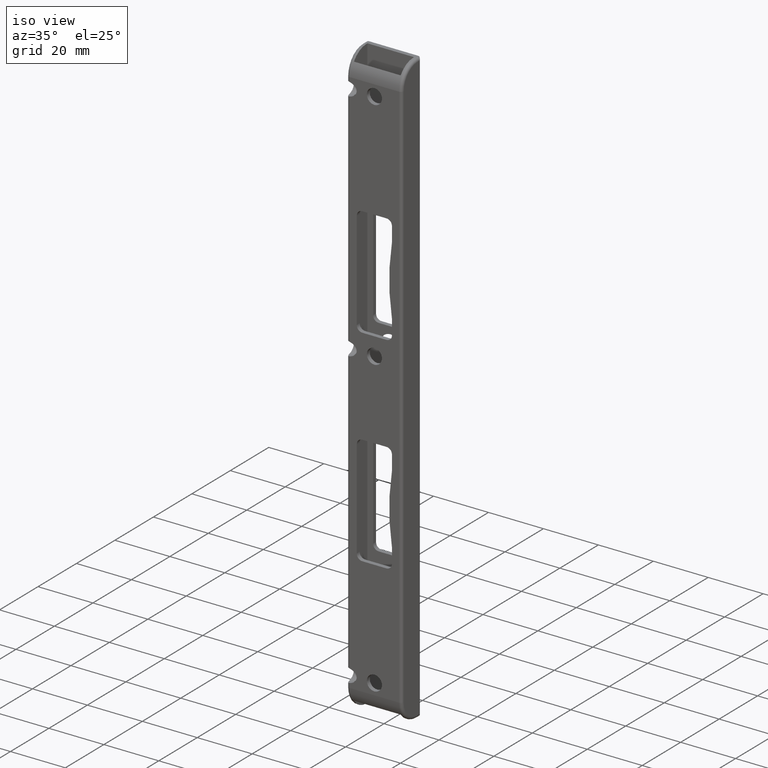
[diagram: clean part render]
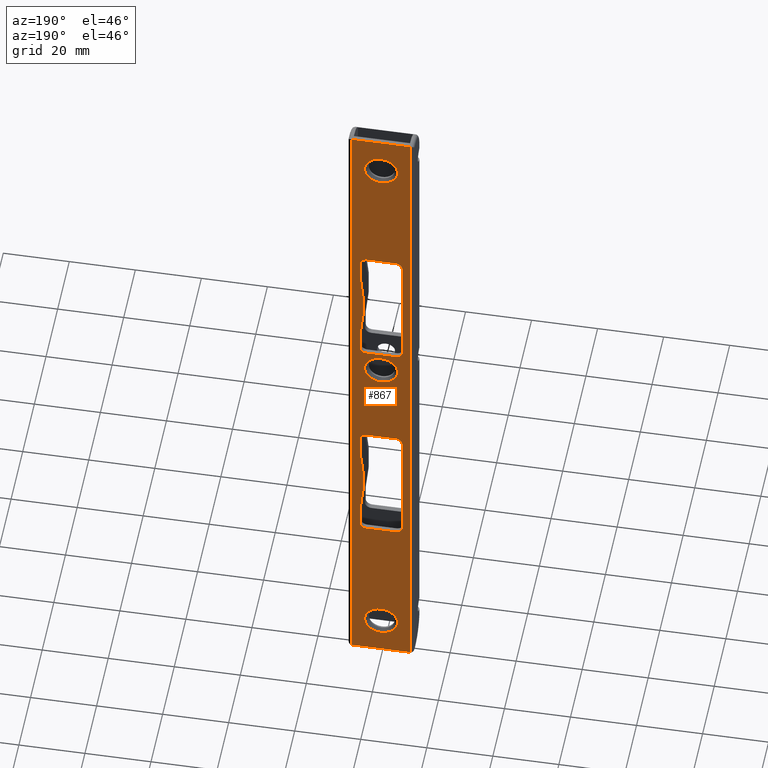
[diagram: tour spotlight — one face highlighted and labeled with its STEP entity id]
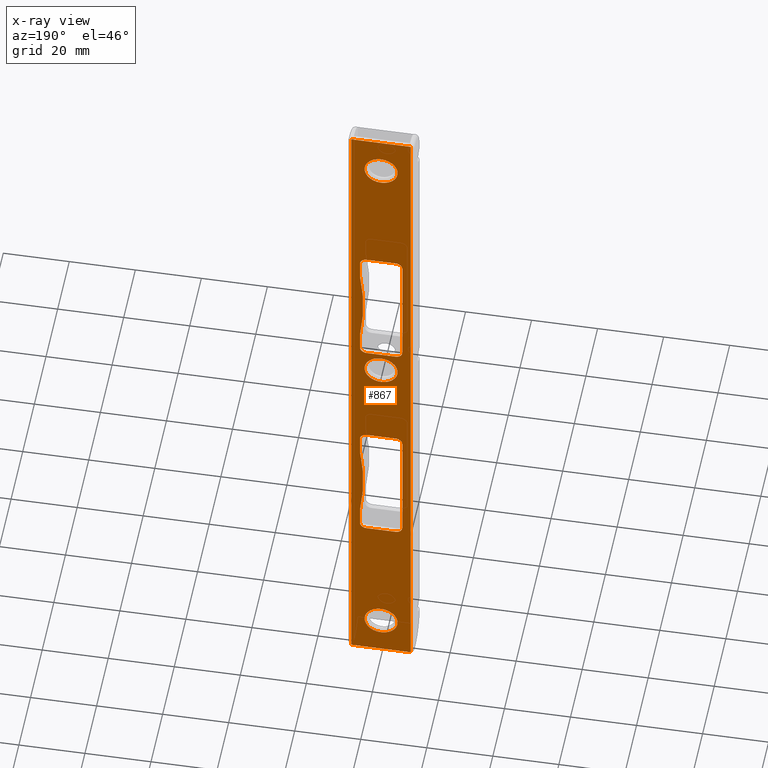
[diagram: x-ray of the same camera — body ghosted, this tour face saturated]
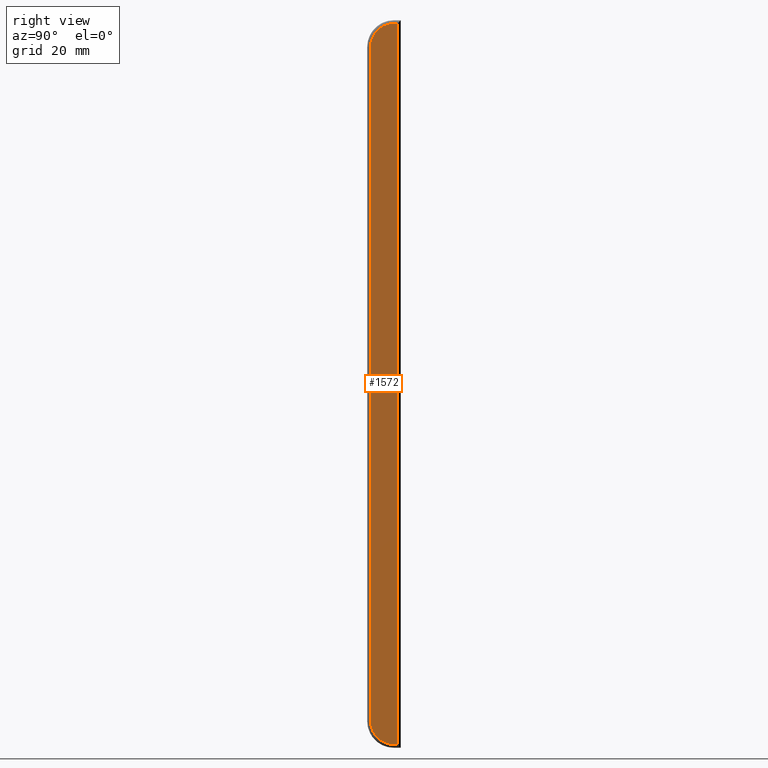
[diagram: tour spotlight — one face highlighted and labeled with its STEP entity id]
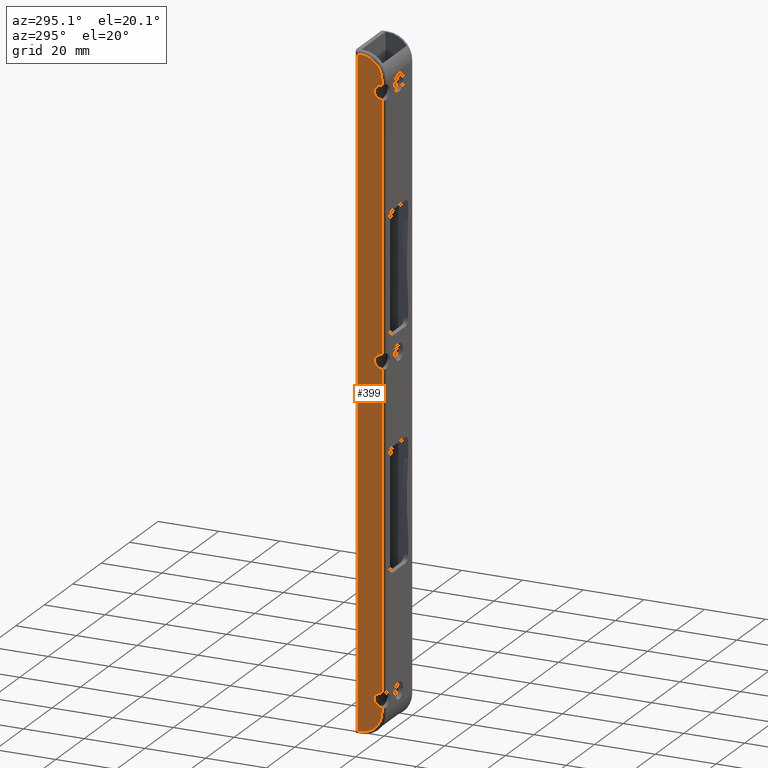
[diagram: tour spotlight — one face highlighted and labeled with its STEP entity id]
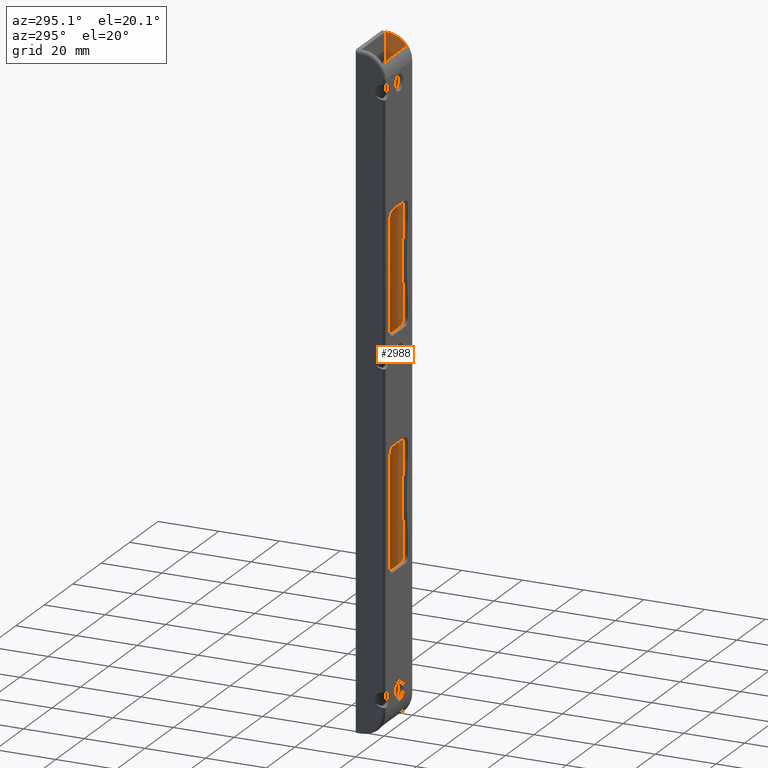
[diagram: tour spotlight — one face highlighted and labeled with its STEP entity id]
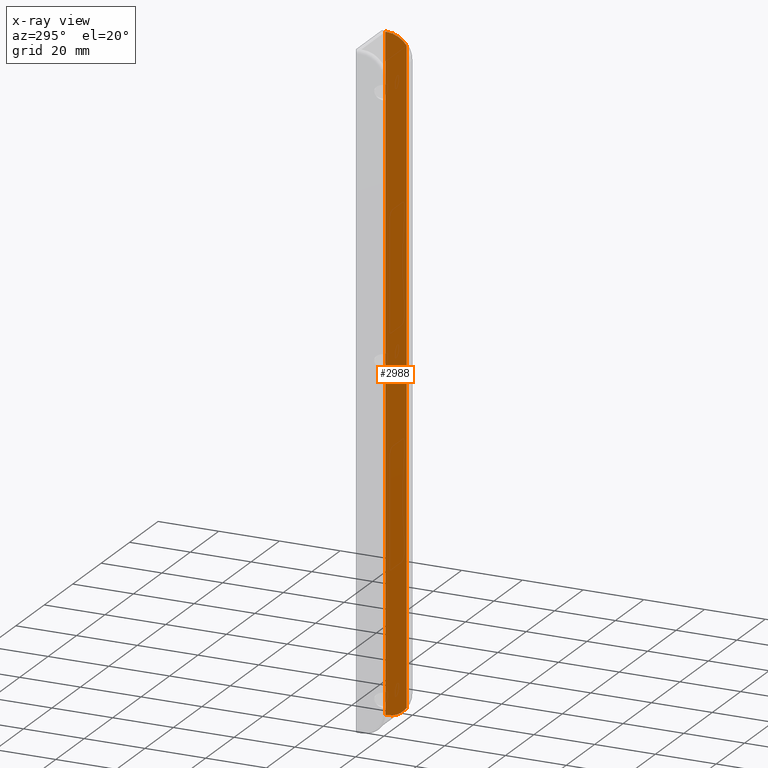
[diagram: x-ray of the same camera — body ghosted, this tour face saturated]
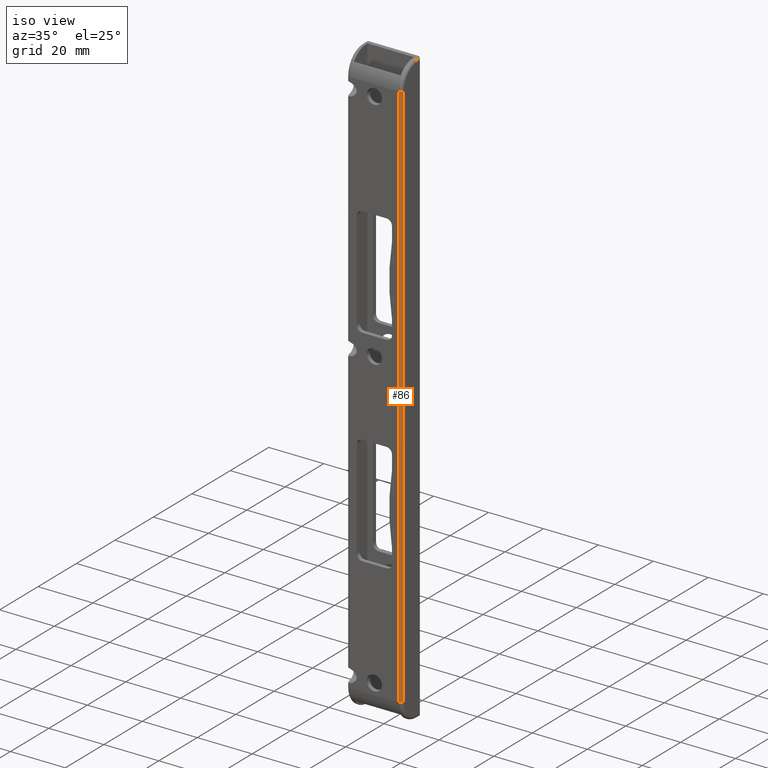
[diagram: tour spotlight — one face highlighted and labeled with its STEP entity id]
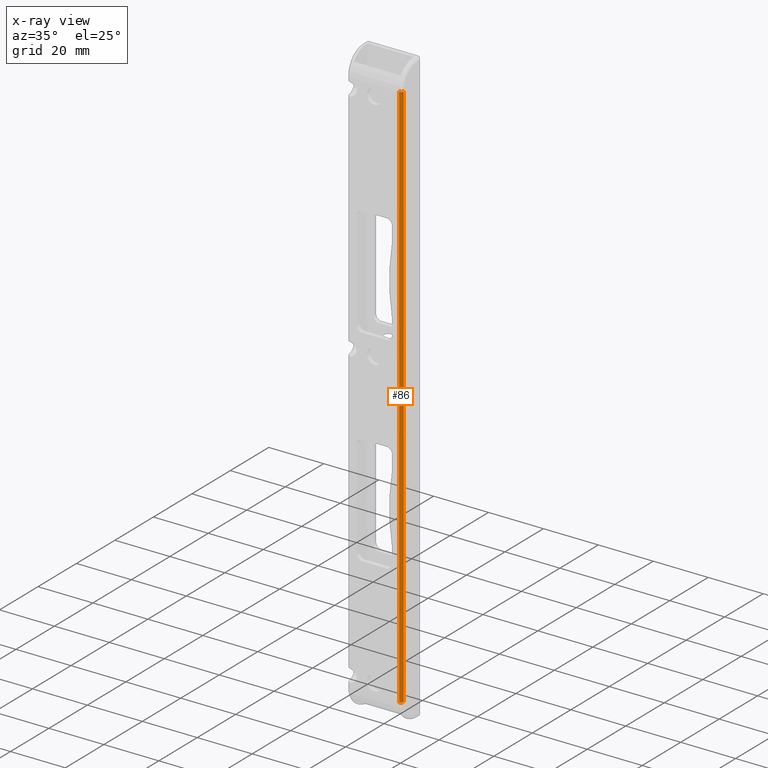
[diagram: x-ray of the same camera — body ghosted, this tour face saturated]
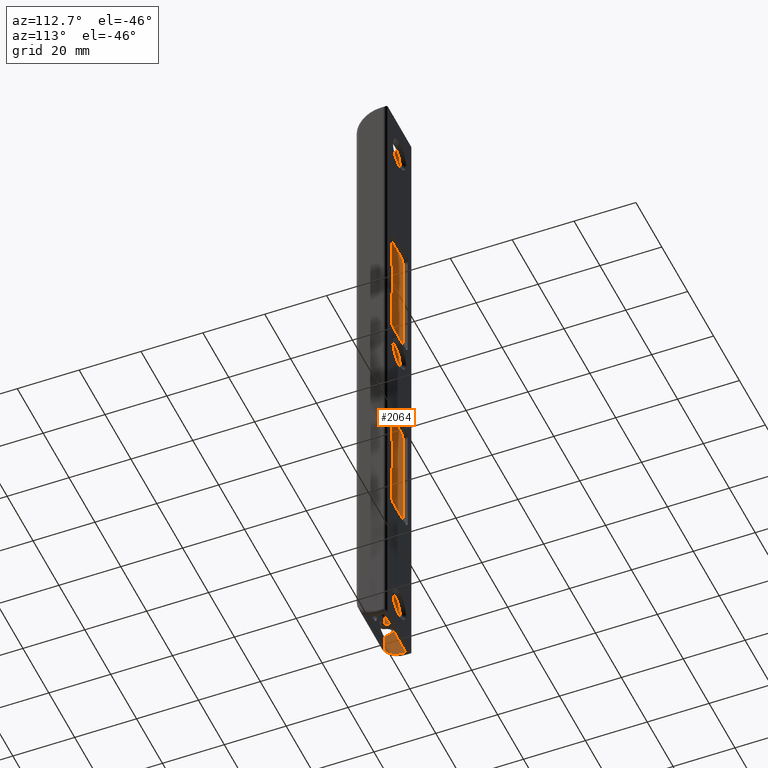
[diagram: tour spotlight — one face highlighted and labeled with its STEP entity id]
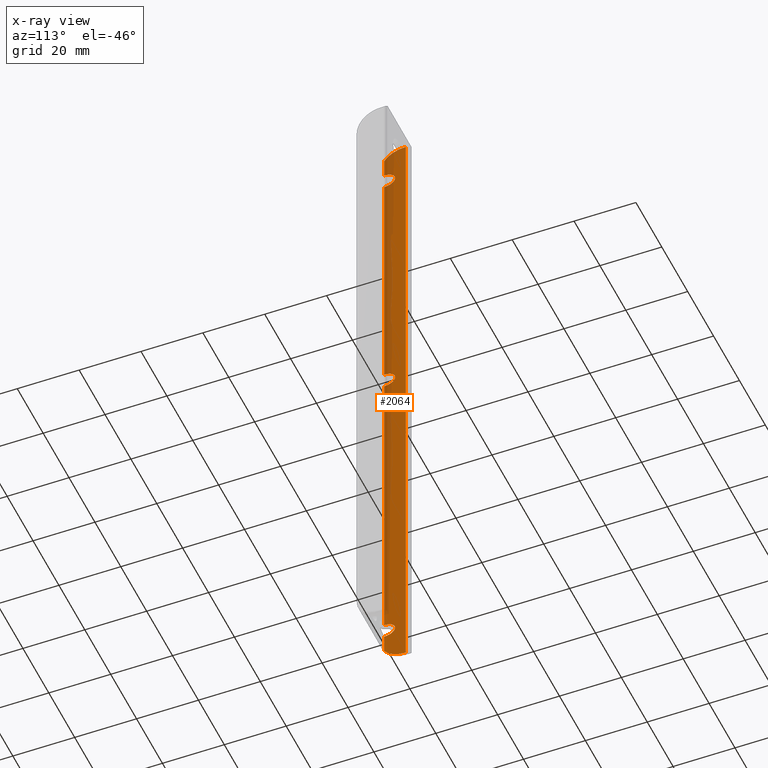
[diagram: x-ray of the same camera — body ghosted, this tour face saturated]
A machine part: a face-by-face anatomy tour. The part has 91 B-rep faces; the first image is the clean iso view, then the 6 largest visible faces are spotlighted one at a time (largest first), each with its STEP entity span.

Face 1 — auxiliary view, entity #867. An x-ray twin of the same camera follows (body ghosted, this face saturated) — the face is partly hidden behind the body. In plain terms, the highlighted planar face has unit normal (0, -1, 0).
Definition (entity closure, byte-faithful):
#15 = VECTOR ( 'NONE', #1320, 1000.000000000000000 ) ;
#28 = DIRECTION ( 'NONE',  ( 1.927470528863120528E-16, 0.000000000000000000, 1.000000000000000000 ) ) ;
#41 = CARTESIAN_POINT ( 'NONE',  ( 4.399999999999983480, 5.000000000000000888, 17.60000000000002629 ) ) ;
#53 = EDGE_LOOP ( 'NONE', ( #1420, #1398 ) ) ;
#64 = AXIS2_PLACEMENT_3D ( 'NONE', #528, #1793, #2800 ) ;
#78 = ORIENTED_EDGE ( 'NONE', *, *, #2805, .F. ) ;
#97 = LINE ( 'NONE', #1069, #2300 ) ;
#174 = CARTESIAN_POINT ( 'NONE',  ( 6.399999999999995914, 5.000000000000000888, 24.99047978708151518 ) ) ;
#216 = VECTOR ( 'NONE', #3063, 1000.000000000000000 ) ;
#228 = EDGE_CURVE ( 'NONE', #1125, #3183, #2354, .T. ) ;
#237 = DIRECTION ( 'NONE',  ( 1.328655806570404533E-30, -1.000000000000000000, 0.000000000000000000 ) ) ;
#239 = VERTEX_POINT ( 'NONE', #583 ) ;
#250 = LINE ( 'NONE', #2149, #1622 ) ;
#255 = ORIENTED_EDGE ( 'NONE', *, *, #2575, .T. ) ;
#257 = DIRECTION ( 'NONE',  ( -1.328655806570404533E-30, 1.000000000000000000, 0.000000000000000000 ) ) ;
#273 = VECTOR ( 'NONE', #2264, 1000.000000000000000 ) ;
#274 = DIRECTION ( 'NONE',  ( -1.328655806570404533E-30, 1.000000000000000000, 0.000000000000000000 ) ) ;
#275 = AXIS2_PLACEMENT_3D ( 'NONE', #986, #257, #2745 ) ;
#327 = VECTOR ( 'NONE', #663, 1000.000000000000000 ) ;
#328 = CARTESIAN_POINT ( 'NONE',  ( -8.262003606364478827E-30, 5.000000000000000888, -91.50000000000000000 ) ) ;
#338 = VERTEX_POINT ( 'NONE', #2708 ) ;
#356 = CARTESIAN_POINT ( 'NONE',  ( -8.262003606364478827E-30, 5.000000000000000888, 101.5000000000000000 ) ) ;
#358 = VERTEX_POINT ( 'NONE', #3121 ) ;
#370 = CIRCLE ( 'NONE', #2562, 5.000000000000004441 ) ;
#396 = EDGE_CURVE ( 'NONE', #1147, #2119, #1376, .T. ) ;
#397 = CARTESIAN_POINT ( 'NONE',  ( 85.40000000000000568, 5.000000000000000888, -37.60000000000000853 ) ) ;
#402 = DIRECTION ( 'NONE',  ( 0.000000000000000000, 0.000000000000000000, 1.000000000000000000 ) ) ;
#409 = ORIENTED_EDGE ( 'NONE', *, *, #1780, .F. ) ;
#410 = CARTESIAN_POINT ( 'NONE',  ( -10.00000000000000178, 5.000000000000000888, 108.5000000000000000 ) ) ;
#411 = EDGE_CURVE ( 'NONE', #923, #1176, #1733, .T. ) ;
#442 = EDGE_CURVE ( 'NONE', #863, #239, #250, .T. ) ;
#451 = ORIENTED_EDGE ( 'NONE', *, *, #1344, .T. ) ;
#457 = EDGE_CURVE ( 'NONE', #358, #2530, #3137, .T. ) ;
#469 = FACE_OUTER_BOUND ( 'NONE', #2488, .T. ) ;
#478 = AXIS2_PLACEMENT_3D ( 'NONE', #410, #3129, #897 ) ;
#481 = CARTESIAN_POINT ( 'NONE',  ( 6.400000000000016342, 5.000000000000000888, -24.99047978708141216 ) ) ;
#482 = DIRECTION ( 'NONE',  ( 0.000000000000000000, 0.000000000000000000, -1.000000000000000000 ) ) ;
#484 = AXIS2_PLACEMENT_3D ( 'NONE', #397, #3152, #1709 ) ;
#493 = EDGE_CURVE ( 'NONE', #1176, #1912, #751, .T. ) ;
#513 = LINE ( 'NONE', #1296, #2554 ) ;
#515 = DIRECTION ( 'NONE',  ( 1.328655806570404533E-30, -1.000000000000000000, 0.000000000000000000 ) ) ;
#523 = ORIENTED_EDGE ( 'NONE', *, *, #2898, .T. ) ;
#528 = CARTESIAN_POINT ( 'NONE',  ( -7.703719777548943412E-31, 5.000000000000000888, -96.50000000000000000 ) ) ;
#533 = EDGE_CURVE ( 'NONE', #1557, #1430, #2561, .T. ) ;
#551 = DIRECTION ( 'NONE',  ( -0.000000000000000000, -0.000000000000000000, 1.000000000000000000 ) ) ;
#577 = LINE ( 'NONE', #2784, #2197 ) ;
#583 = CARTESIAN_POINT ( 'NONE',  ( -9.000000000000001776, 5.000000000000000888, 108.5000000000000000 ) ) ;
#600 = CARTESIAN_POINT ( 'NONE',  ( 6.400000000000010125, 5.000000000000000888, 50.20952021291860490 ) ) ;
#623 = CARTESIAN_POINT ( 'NONE',  ( 6.400000000000011902, 5.000000000000000888, -19.60000000000000497 ) ) ;
#663 = DIRECTION ( 'NONE',  ( -4.827186663794240958E-16, -1.109335647967047851E-31, 1.000000000000000000 ) ) ;
#689 = EDGE_CURVE ( 'NONE', #1557, #965, #513, .T. ) ;
#694 = CIRCLE ( 'NONE', #2294, 2.000000000000001776 ) ;
#701 = VERTEX_POINT ( 'NONE', #789 ) ;
#707 = FACE_BOUND ( 'NONE', #3116, .T. ) ;
#711 = CARTESIAN_POINT ( 'NONE',  ( 6.399999999999999467, 5.000000000000000888, 19.60000000000004050 ) ) ;
#716 = ORIENTED_EDGE ( 'NONE', *, *, #533, .T. ) ;
#721 = CARTESIAN_POINT ( 'NONE',  ( 6.400000000000005684, 5.000000000000000888, -55.59999999999997300 ) ) ;
#723 = LINE ( 'NONE', #3003, #1680 ) ;
#742 = AXIS2_PLACEMENT_3D ( 'NONE', #2602, #2640, #1598 ) ;
#743 = VECTOR ( 'NONE', #28, 1000.000000000000000 ) ;
#751 = CIRCLE ( 'NONE', #484, 80.00000000000000000 ) ;
#787 = CARTESIAN_POINT ( 'NONE',  ( -4.399999999999981704, 5.000000000000000888, 57.60000000000002274 ) ) ;
#789 = CARTESIAN_POINT ( 'NONE',  ( -4.399999999999975486, 5.000000000000000888, -17.59999999999999076 ) ) ;
#809 = VERTEX_POINT ( 'NONE', #2174 ) ;
#817 = ORIENTED_EDGE ( 'NONE', *, *, #2325, .F. ) ;
#840 = DIRECTION ( 'NONE',  ( 0.000000000000000000, 0.000000000000000000, 1.000000000000000000 ) ) ;
#847 = CARTESIAN_POINT ( 'NONE',  ( 6.123233995736689368E-16, 5.000000000000000888, 91.50000000000000000 ) ) ;
#850 = VERTEX_POINT ( 'NONE', #174 ) ;
#855 = EDGE_CURVE ( 'NONE', #923, #809, #2873, .T. ) ;
#859 = CARTESIAN_POINT ( 'NONE',  ( 4.400000000000004796, 5.000000000000000888, 55.60000000000002274 ) ) ;
#863 = VERTEX_POINT ( 'NONE', #1455 ) ;
#867 = ADVANCED_FACE ( 'NONE', ( #469, #947, #1645, #1674, #1471, #707 ), #2120, .F. ) ;
#893 = ORIENTED_EDGE ( 'NONE', *, *, #493, .T. ) ;
#897 = DIRECTION ( 'NONE',  ( 0.000000000000000000, 0.000000000000000000, -1.000000000000000000 ) ) ;
#900 = CIRCLE ( 'NONE', #742, 1.999999999999998224 ) ;
#918 = CARTESIAN_POINT ( 'NONE',  ( -6.933347799794049071E-30, 5.000000000000000888, -57.59999999999999432 ) ) ;
#923 = VERTEX_POINT ( 'NONE', #721 ) ;
#947 = FACE_BOUND ( 'NONE', #53, .T. ) ;
#965 = VERTEX_POINT ( 'NONE', #1497 ) ;
#986 = CARTESIAN_POINT ( 'NONE',  ( 85.39999999999999147, 5.000000000000000888, 37.60000000000000853 ) ) ;
#995 = CARTESIAN_POINT ( 'NONE',  ( 6.400000000000016342, 5.000000000000000888, 50.20952021291860490 ) ) ;
#1028 = DIRECTION ( 'NONE',  ( 1.000000000000000000, -1.328655806570404533E-30, 0.000000000000000000 ) ) ;
#1069 = CARTESIAN_POINT ( 'NONE',  ( 8.999999999999998224, 5.000000000000000888, 108.5000000000000000 ) ) ;
#1071 = EDGE_CURVE ( 'NONE', #2316, #1122, #1992, .T. ) ;
#1075 = LINE ( 'NONE', #600, #15 ) ;
#1081 = ORIENTED_EDGE ( 'NONE', *, *, #2960, .T. ) ;
#1083 = DIRECTION ( 'NONE',  ( 0.000000000000000000, 0.000000000000000000, 1.000000000000000000 ) ) ;
#1088 = CARTESIAN_POINT ( 'NONE',  ( 4.399999999999999467, 5.000000000000000888, 19.60000000000002629 ) ) ;
#1091 = ORIENTED_EDGE ( 'NONE', *, *, #855, .F. ) ;
#1098 = CIRCLE ( 'NONE', #1414, 5.000000000000002665 ) ;
#1107 = EDGE_CURVE ( 'NONE', #3238, #338, #1991, .T. ) ;
#1112 = CIRCLE ( 'NONE', #1319, 5.000000000000004441 ) ;
#1114 = CARTESIAN_POINT ( 'NONE',  ( -6.399999999999996803, 5.000000000000000888, 55.60000000000000853 ) ) ;
#1122 = VERTEX_POINT ( 'NONE', #2006 ) ;
#1125 = VERTEX_POINT ( 'NONE', #1326 ) ;
#1136 = CARTESIAN_POINT ( 'NONE',  ( 6.400000000000004796, 5.000000000000000888, 55.60000000000000853 ) ) ;
#1147 = VERTEX_POINT ( 'NONE', #847 ) ;
#1164 = VECTOR ( 'NONE', #1824, 1000.000000000000000 ) ;
#1176 = VERTEX_POINT ( 'NONE', #3126 ) ;
#1206 = ORIENTED_EDGE ( 'NONE', *, *, #1765, .F. ) ;
#1215 = CIRCLE ( 'NONE', #275, 79.99999999999998579 ) ;
#1241 = EDGE_CURVE ( 'NONE', #2771, #2381, #900, .T. ) ;
#1272 = VECTOR ( 'NONE', #2670, 1000.000000000000000 ) ;
#1296 = CARTESIAN_POINT ( 'NONE',  ( -6.399999999999985256, 5.000000000000000888, 1.079383496163344971E-15 ) ) ;
#1319 = AXIS2_PLACEMENT_3D ( 'NONE', #1716, #237, #482 ) ;
#1320 = DIRECTION ( 'NONE',  ( -9.654373327588606161E-16, 0.000000000000000000, 1.000000000000000000 ) ) ;
#1326 = CARTESIAN_POINT ( 'NONE',  ( 1.449011120738811987E-14, 5.000000000000000888, 6.000000000000007105 ) ) ;
#1344 = EDGE_CURVE ( 'NONE', #2283, #850, #1433, .T. ) ;
#1356 = DIRECTION ( 'NONE',  ( 0.000000000000000000, 0.000000000000000000, -1.000000000000000000 ) ) ;
#1372 = ORIENTED_EDGE ( 'NONE', *, *, #1534, .T. ) ;
#1376 = CIRCLE ( 'NONE', #3197, 5.000000000000004441 ) ;
#1387 = ORIENTED_EDGE ( 'NONE', *, *, #228, .T. ) ;
#1398 = ORIENTED_EDGE ( 'NONE', *, *, #1442, .T. ) ;
#1414 = AXIS2_PLACEMENT_3D ( 'NONE', #3029, #2847, #1356 ) ;
#1419 = CIRCLE ( 'NONE', #2610, 2.000000000000001776 ) ;
#1420 = ORIENTED_EDGE ( 'NONE', *, *, #1071, .T. ) ;
#1430 = VERTEX_POINT ( 'NONE', #2951 ) ;
#1433 = LINE ( 'NONE', #2431, #1272 ) ;
#1442 = EDGE_CURVE ( 'NONE', #1122, #2316, #370, .T. ) ;
#1455 = CARTESIAN_POINT ( 'NONE',  ( 8.999999999999998224, 5.000000000000000888, 108.5000000000000000 ) ) ;
#1464 = DIRECTION ( 'NONE',  ( 1.328655806570404533E-30, -1.000000000000000000, 0.000000000000000000 ) ) ;
#1467 = CARTESIAN_POINT ( 'NONE',  ( -4.400000000000003020, 5.000000000000000888, 17.60000000000002629 ) ) ;
#1471 = FACE_BOUND ( 'NONE', #2727, .T. ) ;
#1476 = AXIS2_PLACEMENT_3D ( 'NONE', #2939, #3151, #1657 ) ;
#1497 = CARTESIAN_POINT ( 'NONE',  ( -6.399999999999988809, 5.000000000000000888, -19.60000000000000497 ) ) ;
#1498 = EDGE_CURVE ( 'NONE', #2530, #3089, #723, .T. ) ;
#1506 = LINE ( 'NONE', #2482, #216 ) ;
#1509 = VERTEX_POINT ( 'NONE', #2766 ) ;
#1531 = AXIS2_PLACEMENT_3D ( 'NONE', #1088, #3081, #840 ) ;
#1534 = EDGE_CURVE ( 'NONE', #1509, #239, #577, .T. ) ;
#1557 = VERTEX_POINT ( 'NONE', #2019 ) ;
#1560 = EDGE_CURVE ( 'NONE', #3102, #1509, #2278, .T. ) ;
#1569 = EDGE_CURVE ( 'NONE', #863, #3102, #97, .T. ) ;
#1571 = CIRCLE ( 'NONE', #2442, 2.000000000000001776 ) ;
#1598 = DIRECTION ( 'NONE',  ( 0.000000000000000000, 0.000000000000000000, 1.000000000000000000 ) ) ;
#1608 = ORIENTED_EDGE ( 'NONE', *, *, #1498, .T. ) ;
#1610 = ORIENTED_EDGE ( 'NONE', *, *, #2015, .T. ) ;
#1622 = VECTOR ( 'NONE', #3157, 1000.000000000000000 ) ;
#1645 = FACE_BOUND ( 'NONE', #2919, .T. ) ;
#1657 = DIRECTION ( 'NONE',  ( 0.000000000000000000, 0.000000000000000000, 1.000000000000000000 ) ) ;
#1662 = CARTESIAN_POINT ( 'NONE',  ( -6.933347799794049071E-30, 5.000000000000000888, 96.50000000000000000 ) ) ;
#1674 = FACE_BOUND ( 'NONE', #2656, .T. ) ;
#1675 = VECTOR ( 'NONE', #2238, 1000.000000000000000 ) ;
#1680 = VECTOR ( 'NONE', #1028, 1000.000000000000000 ) ;
#1709 = DIRECTION ( 'NONE',  ( 0.000000000000000000, 0.000000000000000000, 1.000000000000000000 ) ) ;
#1716 = CARTESIAN_POINT ( 'NONE',  ( -6.933347799794049071E-30, 5.000000000000000888, 96.50000000000000000 ) ) ;
#1733 = LINE ( 'NONE', #2880, #327 ) ;
#1765 = EDGE_CURVE ( 'NONE', #2283, #3089, #2606, .T. ) ;
#1780 = EDGE_CURVE ( 'NONE', #338, #1898, #1571, .T. ) ;
#1785 = CARTESIAN_POINT ( 'NONE',  ( -7.222237291452134449E-30, 5.000000000000000888, -17.59999999999999076 ) ) ;
#1793 = DIRECTION ( 'NONE',  ( 1.328655806570404533E-30, -1.000000000000000000, 0.000000000000000000 ) ) ;
#1795 = CARTESIAN_POINT ( 'NONE',  ( -10.00000000000000178, 5.000000000000000888, -108.5000000000000000 ) ) ;
#1824 = DIRECTION ( 'NONE',  ( -1.000000000000000000, 1.328655806570404533E-30, 0.000000000000000000 ) ) ;
#1883 = AXIS2_PLACEMENT_3D ( 'NONE', #2195, #1934, #2436 ) ;
#1898 = VERTEX_POINT ( 'NONE', #1136 ) ;
#1912 = VERTEX_POINT ( 'NONE', #481 ) ;
#1925 = VERTEX_POINT ( 'NONE', #995 ) ;
#1934 = DIRECTION ( 'NONE',  ( 1.328655806570404533E-30, -1.000000000000000000, -0.000000000000000000 ) ) ;
#1965 = ORIENTED_EDGE ( 'NONE', *, *, #442, .F. ) ;
#1966 = DIRECTION ( 'NONE',  ( 0.000000000000000000, 0.000000000000000000, 1.000000000000000000 ) ) ;
#1981 = CARTESIAN_POINT ( 'NONE',  ( -6.400000000000003020, 5.000000000000000888, 19.60000000000004050 ) ) ;
#1991 = LINE ( 'NONE', #2550, #273 ) ;
#1992 = CIRCLE ( 'NONE', #64, 5.000000000000004441 ) ;
#2001 = ORIENTED_EDGE ( 'NONE', *, *, #689, .F. ) ;
#2006 = CARTESIAN_POINT ( 'NONE',  ( 6.123233995736689368E-16, 5.000000000000000888, -101.5000000000000000 ) ) ;
#2015 = EDGE_CURVE ( 'NONE', #3183, #1125, #1098, .T. ) ;
#2019 = CARTESIAN_POINT ( 'NONE',  ( -6.399999999999995026, 5.000000000000000888, -55.59999999999997300 ) ) ;
#2031 = DIRECTION ( 'NONE',  ( 0.000000000000000000, 0.000000000000000000, -1.000000000000000000 ) ) ;
#2070 = ORIENTED_EDGE ( 'NONE', *, *, #1241, .F. ) ;
#2075 = EDGE_CURVE ( 'NONE', #1430, #809, #2664, .T. ) ;
#2111 = DIRECTION ( 'NONE',  ( 0.000000000000000000, 0.000000000000000000, -1.000000000000000000 ) ) ;
#2119 = VERTEX_POINT ( 'NONE', #356 ) ;
#2120 = PLANE ( 'NONE',  #478 ) ;
#2136 = AXIS2_PLACEMENT_3D ( 'NONE', #2361, #515, #2754 ) ;
#2149 = CARTESIAN_POINT ( 'NONE',  ( -10.00000000000000178, 5.000000000000000888, 108.5000000000000000 ) ) ;
#2174 = CARTESIAN_POINT ( 'NONE',  ( 4.399999999999990585, 5.000000000000000888, -57.59999999999999432 ) ) ;
#2195 = CARTESIAN_POINT ( 'NONE',  ( -4.399999999999995026, 5.000000000000000888, -55.59999999999998721 ) ) ;
#2197 = VECTOR ( 'NONE', #551, 1000.000000000000000 ) ;
#2209 = ORIENTED_EDGE ( 'NONE', *, *, #2075, .T. ) ;
#2229 = CARTESIAN_POINT ( 'NONE',  ( -4.399999999999988809, 5.000000000000000888, -19.59999999999999076 ) ) ;
#2238 = DIRECTION ( 'NONE',  ( 1.000000000000000000, -1.328655806570404533E-30, 0.000000000000000000 ) ) ;
#2256 = LINE ( 'NONE', #1981, #743 ) ;
#2264 = DIRECTION ( 'NONE',  ( 1.000000000000000000, -1.328655806570404883E-30, 0.000000000000000000 ) ) ;
#2278 = LINE ( 'NONE', #1795, #1164 ) ;
#2283 = VERTEX_POINT ( 'NONE', #711 ) ;
#2294 = AXIS2_PLACEMENT_3D ( 'NONE', #2229, #274, #1966 ) ;
#2300 = VECTOR ( 'NONE', #2031, 1000.000000000000000 ) ;
#2316 = VERTEX_POINT ( 'NONE', #328 ) ;
#2325 = EDGE_CURVE ( 'NONE', #2353, #3238, #1419, .T. ) ;
#2340 = VECTOR ( 'NONE', #3156, 1000.000000000000000 ) ;
#2353 = VERTEX_POINT ( 'NONE', #1114 ) ;
#2354 = CIRCLE ( 'NONE', #2789, 5.000000000000002665 ) ;
#2356 = CARTESIAN_POINT ( 'NONE',  ( -4.399999999999995914, 5.000000000000000888, 55.60000000000002274 ) ) ;
#2361 = CARTESIAN_POINT ( 'NONE',  ( -4.400000000000003020, 5.000000000000000888, 19.60000000000002629 ) ) ;
#2380 = CARTESIAN_POINT ( 'NONE',  ( -7.703719777548943412E-31, 5.000000000000000888, -96.50000000000000000 ) ) ;
#2381 = VERTEX_POINT ( 'NONE', #623 ) ;
#2414 = ORIENTED_EDGE ( 'NONE', *, *, #2594, .F. ) ;
#2431 = CARTESIAN_POINT ( 'NONE',  ( 6.399999999999997691, 5.000000000000000888, 19.60000000000004050 ) ) ;
#2436 = DIRECTION ( 'NONE',  ( 0.000000000000000000, 0.000000000000000000, 1.000000000000000000 ) ) ;
#2442 = AXIS2_PLACEMENT_3D ( 'NONE', #859, #3158, #402 ) ;
#2482 = CARTESIAN_POINT ( 'NONE',  ( 6.399999999999992362, 5.000000000000000888, 6.178798929656697530E-15 ) ) ;
#2488 = EDGE_LOOP ( 'NONE', ( #1965, #2783, #2955, #1372 ) ) ;
#2530 = VERTEX_POINT ( 'NONE', #1467 ) ;
#2550 = CARTESIAN_POINT ( 'NONE',  ( -4.399999999999981704, 5.000000000000000888, 57.60000000000002274 ) ) ;
#2554 = VECTOR ( 'NONE', #2729, 1000.000000000000000 ) ;
#2561 = CIRCLE ( 'NONE', #1883, 2.000000000000001776 ) ;
#2562 = AXIS2_PLACEMENT_3D ( 'NONE', #2380, #1464, #3218 ) ;
#2567 = DIRECTION ( 'NONE',  ( 1.328655806570404533E-30, -1.000000000000000000, 0.000000000000000000 ) ) ;
#2575 = EDGE_CURVE ( 'NONE', #850, #1925, #1215, .T. ) ;
#2594 = EDGE_CURVE ( 'NONE', #965, #701, #694, .T. ) ;
#2602 = CARTESIAN_POINT ( 'NONE',  ( 4.400000000000011902, 5.000000000000000888, -19.59999999999998721 ) ) ;
#2605 = DIRECTION ( 'NONE',  ( -1.328655806570404533E-30, 1.000000000000000000, 0.000000000000000000 ) ) ;
#2606 = CIRCLE ( 'NONE', #1531, 2.000000000000001776 ) ;
#2610 = AXIS2_PLACEMENT_3D ( 'NONE', #2356, #2605, #1083 ) ;
#2627 = ORIENTED_EDGE ( 'NONE', *, *, #457, .T. ) ;
#2640 = DIRECTION ( 'NONE',  ( -1.328655806570404533E-30, 1.000000000000000000, 0.000000000000000000 ) ) ;
#2656 = EDGE_LOOP ( 'NONE', ( #2686, #2932 ) ) ;
#2664 = LINE ( 'NONE', #918, #2340 ) ;
#2670 = DIRECTION ( 'NONE',  ( -3.218124442529494136E-16, 0.000000000000000000, 1.000000000000000000 ) ) ;
#2677 = EDGE_CURVE ( 'NONE', #2119, #1147, #1112, .T. ) ;
#2682 = ORIENTED_EDGE ( 'NONE', *, *, #2804, .F. ) ;
#2686 = ORIENTED_EDGE ( 'NONE', *, *, #2677, .T. ) ;
#2687 = CARTESIAN_POINT ( 'NONE',  ( 1.387778780781444098E-14, 5.000000000000000888, 16.00000000000001421 ) ) ;
#2708 = CARTESIAN_POINT ( 'NONE',  ( 4.399999999999990585, 5.000000000000000888, 57.60000000000002274 ) ) ;
#2727 = EDGE_LOOP ( 'NONE', ( #817, #2682, #2627, #1608, #1206, #451, #255, #523, #409, #3009 ) ) ;
#2729 = DIRECTION ( 'NONE',  ( 1.686536712755230215E-16, -1.109335647967047851E-31, 1.000000000000000000 ) ) ;
#2745 = DIRECTION ( 'NONE',  ( 0.000000000000000000, 0.000000000000000000, 1.000000000000000000 ) ) ;
#2754 = DIRECTION ( 'NONE',  ( 0.000000000000000000, 0.000000000000000000, -1.000000000000000000 ) ) ;
#2766 = CARTESIAN_POINT ( 'NONE',  ( -9.000000000000001776, 5.000000000000000888, -108.5000000000000000 ) ) ;
#2771 = VERTEX_POINT ( 'NONE', #2773 ) ;
#2773 = CARTESIAN_POINT ( 'NONE',  ( 4.399999999999997691, 5.000000000000000888, -17.59999999999999076 ) ) ;
#2783 = ORIENTED_EDGE ( 'NONE', *, *, #1569, .T. ) ;
#2784 = CARTESIAN_POINT ( 'NONE',  ( -9.000000000000001776, 5.000000000000000888, 108.5000000000000000 ) ) ;
#2789 = AXIS2_PLACEMENT_3D ( 'NONE', #3110, #2567, #3054 ) ;
#2800 = DIRECTION ( 'NONE',  ( 0.000000000000000000, 0.000000000000000000, -1.000000000000000000 ) ) ;
#2804 = EDGE_CURVE ( 'NONE', #358, #2353, #2256, .T. ) ;
#2805 = EDGE_CURVE ( 'NONE', #701, #2771, #3020, .T. ) ;
#2847 = DIRECTION ( 'NONE',  ( 1.328655806570404533E-30, -1.000000000000000000, 0.000000000000000000 ) ) ;
#2873 = CIRCLE ( 'NONE', #1476, 2.000000000000001776 ) ;
#2880 = CARTESIAN_POINT ( 'NONE',  ( 6.399999999999979039, 5.000000000000000888, 3.089399464828303800E-15 ) ) ;
#2898 = EDGE_CURVE ( 'NONE', #1925, #1898, #1075, .T. ) ;
#2919 = EDGE_LOOP ( 'NONE', ( #1610, #1387 ) ) ;
#2932 = ORIENTED_EDGE ( 'NONE', *, *, #396, .T. ) ;
#2939 = CARTESIAN_POINT ( 'NONE',  ( 4.400000000000006573, 5.000000000000000888, -55.59999999999998721 ) ) ;
#2951 = CARTESIAN_POINT ( 'NONE',  ( -4.399999999999979927, 5.000000000000000888, -57.59999999999999432 ) ) ;
#2955 = ORIENTED_EDGE ( 'NONE', *, *, #1560, .T. ) ;
#2960 = EDGE_CURVE ( 'NONE', #1912, #2381, #1506, .T. ) ;
#2980 = DIRECTION ( 'NONE',  ( 1.328655806570404533E-30, -1.000000000000000000, 0.000000000000000000 ) ) ;
#3003 = CARTESIAN_POINT ( 'NONE',  ( -4.399999999999987033, 5.000000000000000888, 17.60000000000002629 ) ) ;
#3009 = ORIENTED_EDGE ( 'NONE', *, *, #1107, .F. ) ;
#3020 = LINE ( 'NONE', #1785, #1675 ) ;
#3029 = CARTESIAN_POINT ( 'NONE',  ( 1.387778780781444256E-14, 5.000000000000000888, 11.00000000000001066 ) ) ;
#3031 = CARTESIAN_POINT ( 'NONE',  ( 8.999999999999998224, 5.000000000000000888, -108.5000000000000000 ) ) ;
#3054 = DIRECTION ( 'NONE',  ( 0.000000000000000000, 0.000000000000000000, -1.000000000000000000 ) ) ;
#3063 = DIRECTION ( 'NONE',  ( -9.654373327588600245E-16, 0.000000000000000000, 1.000000000000000000 ) ) ;
#3081 = DIRECTION ( 'NONE',  ( -1.328655806570404533E-30, 1.000000000000000000, 0.000000000000000000 ) ) ;
#3089 = VERTEX_POINT ( 'NONE', #41 ) ;
#3102 = VERTEX_POINT ( 'NONE', #3031 ) ;
#3110 = CARTESIAN_POINT ( 'NONE',  ( 1.387778780781444256E-14, 5.000000000000000888, 11.00000000000001066 ) ) ;
#3116 = EDGE_LOOP ( 'NONE', ( #893, #1081, #2070, #78, #2414, #2001, #716, #2209, #1091, #3178 ) ) ;
#3121 = CARTESIAN_POINT ( 'NONE',  ( -6.400000000000003908, 5.000000000000000888, 19.60000000000004050 ) ) ;
#3126 = CARTESIAN_POINT ( 'NONE',  ( 6.400000000000003020, 5.000000000000000888, -50.20952021291849832 ) ) ;
#3129 = DIRECTION ( 'NONE',  ( 1.328655806570404533E-30, -1.000000000000000000, 0.000000000000000000 ) ) ;
#3137 = CIRCLE ( 'NONE', #2136, 2.000000000000001776 ) ;
#3151 = DIRECTION ( 'NONE',  ( -1.328655806570404533E-30, 1.000000000000000000, 0.000000000000000000 ) ) ;
#3152 = DIRECTION ( 'NONE',  ( -1.328655806570404533E-30, 1.000000000000000000, 0.000000000000000000 ) ) ;
#3156 = DIRECTION ( 'NONE',  ( 1.000000000000000000, -1.328655806570404533E-30, 0.000000000000000000 ) ) ;
#3157 = DIRECTION ( 'NONE',  ( -1.000000000000000000, 1.328655806570404533E-30, 0.000000000000000000 ) ) ;
#3158 = DIRECTION ( 'NONE',  ( -1.328655806570404533E-30, 1.000000000000000000, 0.000000000000000000 ) ) ;
#3178 = ORIENTED_EDGE ( 'NONE', *, *, #411, .T. ) ;
#3183 = VERTEX_POINT ( 'NONE', #2687 ) ;
#3197 = AXIS2_PLACEMENT_3D ( 'NONE', #1662, #2980, #2111 ) ;
#3218 = DIRECTION ( 'NONE',  ( 0.000000000000000000, 0.000000000000000000, -1.000000000000000000 ) ) ;
#3238 = VERTEX_POINT ( 'NONE', #787 ) ;

Face 2 — right view, entity #1572. In plain terms, the highlighted planar face has unit normal (-1, 0, 0).
Definition (entity closure, byte-faithful):
#120 = CIRCLE ( 'NONE', #1379, 7.000000000000006217 ) ;
#138 = CARTESIAN_POINT ( 'NONE',  ( 9.999999999999998224, -4.000000000000000000, 108.5000000000000000 ) ) ;
#149 = CARTESIAN_POINT ( 'NONE',  ( 9.999999999999998224, 3.000000000000000888, 107.5000000000000000 ) ) ;
#167 = VERTEX_POINT ( 'NONE', #3217 ) ;
#276 = ORIENTED_EDGE ( 'NONE', *, *, #1589, .T. ) ;
#282 = DIRECTION ( 'NONE',  ( -1.000000000000000000, 1.328655806570404533E-30, 0.000000000000000000 ) ) ;
#295 = FACE_OUTER_BOUND ( 'NONE', #2890, .T. ) ;
#404 = LINE ( 'NONE', #138, #1057 ) ;
#419 = EDGE_CURVE ( 'NONE', #1891, #2643, #2391, .T. ) ;
#427 = ORIENTED_EDGE ( 'NONE', *, *, #2660, .T. ) ;
#598 = DIRECTION ( 'NONE',  ( 1.000000000000000000, -1.328655806570404533E-30, -0.000000000000000000 ) ) ;
#652 = DIRECTION ( 'NONE',  ( 0.000000000000000000, 0.000000000000000000, -1.000000000000000000 ) ) ;
#679 = CARTESIAN_POINT ( 'NONE',  ( 9.999999999999998224, 4.000000000000000888, -107.5000000000000000 ) ) ;
#844 = AXIS2_PLACEMENT_3D ( 'NONE', #1301, #2281, #2042 ) ;
#927 = ORIENTED_EDGE ( 'NONE', *, *, #2551, .T. ) ;
#1053 = DIRECTION ( 'NONE',  ( 0.000000000000000000, 0.000000000000000000, 1.000000000000000000 ) ) ;
#1057 = VECTOR ( 'NONE', #652, 1000.000000000000000 ) ;
#1156 = CIRCLE ( 'NONE', #844, 7.000000000000006217 ) ;
#1162 = DIRECTION ( 'NONE',  ( -0.000000000000000000, -0.000000000000000000, 1.000000000000000000 ) ) ;
#1216 = VECTOR ( 'NONE', #1235, 1000.000000000000000 ) ;
#1235 = DIRECTION ( 'NONE',  ( -1.328655806570404533E-30, 1.000000000000000000, 0.000000000000000000 ) ) ;
#1253 = CARTESIAN_POINT ( 'NONE',  ( 9.999999999999998224, 5.000000000000000888, -107.5000000000000000 ) ) ;
#1257 = CARTESIAN_POINT ( 'NONE',  ( 9.999999999999998224, 4.000000000000000888, 107.5000000000000000 ) ) ;
#1286 = CARTESIAN_POINT ( 'NONE',  ( 9.999999999999998224, 5.000000000000000888, 108.5000000000000000 ) ) ;
#1301 = CARTESIAN_POINT ( 'NONE',  ( 9.999999999999998224, 3.000000000000000888, -100.5000000000000142 ) ) ;
#1379 = AXIS2_PLACEMENT_3D ( 'NONE', #2293, #598, #1053 ) ;
#1572 = ADVANCED_FACE ( 'NONE', ( #295 ), #2512, .F. ) ;
#1589 = EDGE_CURVE ( 'NONE', #1881, #167, #120, .T. ) ;
#1613 = LINE ( 'NONE', #2095, #2871 ) ;
#1655 = EDGE_CURVE ( 'NONE', #2643, #1969, #1613, .T. ) ;
#1735 = AXIS2_PLACEMENT_3D ( 'NONE', #1286, #282, #2828 ) ;
#1881 = VERTEX_POINT ( 'NONE', #149 ) ;
#1891 = VERTEX_POINT ( 'NONE', #3174 ) ;
#1969 = VERTEX_POINT ( 'NONE', #1257 ) ;
#2042 = DIRECTION ( 'NONE',  ( 0.000000000000000000, 0.000000000000000000, 1.000000000000000000 ) ) ;
#2056 = EDGE_CURVE ( 'NONE', #2187, #1891, #1156, .T. ) ;
#2095 = CARTESIAN_POINT ( 'NONE',  ( 9.999999999999998224, 4.000000000000000888, 108.5000000000000000 ) ) ;
#2169 = ORIENTED_EDGE ( 'NONE', *, *, #2056, .T. ) ;
#2187 = VERTEX_POINT ( 'NONE', #3232 ) ;
#2250 = VECTOR ( 'NONE', #3221, 1000.000000000000000 ) ;
#2281 = DIRECTION ( 'NONE',  ( 1.000000000000000000, -1.328655806570404533E-30, -0.000000000000000000 ) ) ;
#2293 = CARTESIAN_POINT ( 'NONE',  ( 9.999999999999998224, 3.000000000000000888, 100.5000000000000000 ) ) ;
#2391 = LINE ( 'NONE', #1253, #1216 ) ;
#2504 = CARTESIAN_POINT ( 'NONE',  ( 9.999999999999998224, 3.000000000000000888, 107.5000000000000000 ) ) ;
#2512 = PLANE ( 'NONE',  #1735 ) ;
#2551 = EDGE_CURVE ( 'NONE', #1969, #1881, #2973, .T. ) ;
#2643 = VERTEX_POINT ( 'NONE', #679 ) ;
#2660 = EDGE_CURVE ( 'NONE', #167, #2187, #404, .T. ) ;
#2828 = DIRECTION ( 'NONE',  ( 0.000000000000000000, 0.000000000000000000, 1.000000000000000000 ) ) ;
#2871 = VECTOR ( 'NONE', #1162, 1000.000000000000000 ) ;
#2890 = EDGE_LOOP ( 'NONE', ( #927, #276, #427, #2169, #2896, #3104 ) ) ;
#2896 = ORIENTED_EDGE ( 'NONE', *, *, #419, .T. ) ;
#2973 = LINE ( 'NONE', #2504, #2250 ) ;
#3104 = ORIENTED_EDGE ( 'NONE', *, *, #1655, .T. ) ;
#3174 = CARTESIAN_POINT ( 'NONE',  ( 9.999999999999998224, 3.000000000000000888, -107.5000000000000284 ) ) ;
#3217 = CARTESIAN_POINT ( 'NONE',  ( 9.999999999999998224, -4.000000000000000000, 100.5000000000000000 ) ) ;
#3221 = DIRECTION ( 'NONE',  ( 1.328655806570404533E-30, -1.000000000000000000, -0.000000000000000000 ) ) ;
#3232 = CARTESIAN_POINT ( 'NONE',  ( 9.999999999999998224, -4.000000000000000000, -100.5000000000000142 ) ) ;

Face 3 — auxiliary view, entity #399. In plain terms, the highlighted planar face has unit normal (1, 0, -0).
Definition (entity closure, byte-faithful):
#4 = CARTESIAN_POINT ( 'NONE',  ( -10.00000000000000000, -2.439005865596076905, -98.57242598437460401 ) ) ;
#60 = CIRCLE ( 'NONE', #1012, 7.000000000000000888 ) ;
#88 = CARTESIAN_POINT ( 'NONE',  ( -10.00000000000000000, -4.000000000000000000, -94.10208423834366442 ) ) ;
#136 = CARTESIAN_POINT ( 'NONE',  ( -10.00000000000000178, 4.000000000000000888, -107.5000000000000000 ) ) ;
#161 = EDGE_CURVE ( 'NONE', #3111, #938, #1042, .T. ) ;
#193 = LINE ( 'NONE', #1196, #1115 ) ;
#231 = PLANE ( 'NONE',  #1219 ) ;
#238 = CARTESIAN_POINT ( 'NONE',  ( -10.00000000000000000, -1.464466094067283120, 9.849219856385831307 ) ) ;
#315 = ORIENTED_EDGE ( 'NONE', *, *, #2387, .T. ) ;
#366 = LINE ( 'NONE', #2077, #2290 ) ;
#399 = ADVANCED_FACE ( 'NONE', ( #1647 ), #231, .F. ) ;
#415 = DIRECTION ( 'NONE',  ( -0.000000000000000000, -0.000000000000000000, 1.000000000000000000 ) ) ;
#480 = CARTESIAN_POINT ( 'NONE',  ( -10.00000000000000000, -4.000000000000000000, -98.89791576165636400 ) ) ;
#540 = CARTESIAN_POINT ( 'NONE',  ( -10.00000000000000000, -1.464466094067282897, 11.00000000000001066 ) ) ;
#543 = CARTESIAN_POINT ( 'NONE',  ( -10.00000000000000000, -2.439005865596079570, 13.07242598437459868 ) ) ;
#547 = LINE ( 'NONE', #1547, #2295 ) ;
#607 = VERTEX_POINT ( 'NONE', #1250 ) ;
#615 = CARTESIAN_POINT ( 'NONE',  ( -10.00000000000000000, -1.464466094067277568, 96.50000000000000000 ) ) ;
#619 = VERTEX_POINT ( 'NONE', #1772 ) ;
#710 = EDGE_CURVE ( 'NONE', #1597, #1822, #1038, .T. ) ;
#729 = VERTEX_POINT ( 'NONE', #1558 ) ;
#791 = EDGE_CURVE ( 'NONE', #1822, #1984, #2357, .T. ) ;
#814 = CARTESIAN_POINT ( 'NONE',  ( -10.00000000000000178, 3.000000000000000888, -100.5000000000000142 ) ) ;
#824 = EDGE_CURVE ( 'NONE', #1249, #1525, #60, .T. ) ;
#829 = ORIENTED_EDGE ( 'NONE', *, *, #1978, .T. ) ;
#873 = CARTESIAN_POINT ( 'NONE',  ( -10.00000000000000000, -2.439005865596076905, 98.57242598437460401 ) ) ;
#882 = LINE ( 'NONE', #2386, #2886 ) ;
#885 = CARTESIAN_POINT ( 'NONE',  ( -10.00000000000000000, -1.464466094067276680, 97.65078014361417047 ) ) ;
#896 = ORIENTED_EDGE ( 'NONE', *, *, #1128, .T. ) ;
#920 = CARTESIAN_POINT ( 'NONE',  ( -10.00000000000000000, -4.000000000000000000, 94.10208423834363600 ) ) ;
#937 = LINE ( 'NONE', #1921, #1213 ) ;
#938 = VERTEX_POINT ( 'NONE', #1251 ) ;
#955 = CARTESIAN_POINT ( 'NONE',  ( -10.00000000000000178, 3.000000000000000888, 107.5000000000000000 ) ) ;
#966 = VERTEX_POINT ( 'NONE', #1440 ) ;
#969 = CARTESIAN_POINT ( 'NONE',  ( -10.00000000000000000, -4.000000000000000000, 94.10208423834363600 ) ) ;
#1012 = AXIS2_PLACEMENT_3D ( 'NONE', #2922, #2705, #3169 ) ;
#1038 = LINE ( 'NONE', #2508, #1778 ) ;
#1042 =( BOUNDED_CURVE ( )  B_SPLINE_CURVE ( 3, ( #2758, #2468, #238, #540 ),
 .UNSPECIFIED., .F., .T. ) 
 B_SPLINE_CURVE_WITH_KNOTS ( ( 4, 4 ),
 ( 1.857552879006447277, 3.141592653589793116 ),
 .UNSPECIFIED. ) 
 CURVE ( )  GEOMETRIC_REPRESENTATION_ITEM ( )  RATIONAL_B_SPLINE_CURVE ( ( 1.000000000000000000, 0.8672585699795265501, 0.8672585699795265501, 1.000000000000000000 ) ) 
 REPRESENTATION_ITEM ( '' )  );
#1115 = VECTOR ( 'NONE', #3188, 1000.000000000000000 ) ;
#1128 = EDGE_CURVE ( 'NONE', #729, #1249, #547, .T. ) ;
#1129 = DIRECTION ( 'NONE',  ( -1.734723475976820406E-16, 1.000000000000000000, -1.109335647967047851E-31 ) ) ;
#1150 = CIRCLE ( 'NONE', #2079, 7.000000000000000888 ) ;
#1154 = ORIENTED_EDGE ( 'NONE', *, *, #2882, .T. ) ;
#1158 =( BOUNDED_CURVE ( )  B_SPLINE_CURVE ( 3, ( #615, #885, #873, #2647 ),
 .UNSPECIFIED., .F., .T. ) 
 B_SPLINE_CURVE_WITH_KNOTS ( ( 4, 4 ),
 ( 3.141592653589793116, 4.425632428173140731 ),
 .UNSPECIFIED. ) 
 CURVE ( )  GEOMETRIC_REPRESENTATION_ITEM ( )  RATIONAL_B_SPLINE_CURVE ( ( 1.000000000000000000, 0.8672585699795263281, 0.8672585699795263281, 1.000000000000000000 ) ) 
 REPRESENTATION_ITEM ( '' )  );
#1160 = CARTESIAN_POINT ( 'NONE',  ( -10.00000000000000000, -2.439005865596076905, 94.42757401562541020 ) ) ;
#1196 = CARTESIAN_POINT ( 'NONE',  ( -10.00000000000000178, 5.000000000000000888, -107.5000000000000000 ) ) ;
#1213 = VECTOR ( 'NONE', #2928, 1000.000000000000000 ) ;
#1219 = AXIS2_PLACEMENT_3D ( 'NONE', #1874, #2648, #2894 ) ;
#1249 = VERTEX_POINT ( 'NONE', #2092 ) ;
#1250 = CARTESIAN_POINT ( 'NONE',  ( -10.00000000000000000, -3.999999999999999112, -100.5000000000000142 ) ) ;
#1251 = CARTESIAN_POINT ( 'NONE',  ( -10.00000000000000000, -1.464466094067282897, 11.00000000000001066 ) ) ;
#1366 = ORIENTED_EDGE ( 'NONE', *, *, #2122, .T. ) ;
#1397 = VERTEX_POINT ( 'NONE', #3199 ) ;
#1405 = CARTESIAN_POINT ( 'NONE',  ( -10.00000000000000000, -1.464466094067277568, 96.50000000000000000 ) ) ;
#1440 = CARTESIAN_POINT ( 'NONE',  ( -10.00000000000000178, 4.000000000000000888, 107.5000000000000000 ) ) ;
#1504 = ORIENTED_EDGE ( 'NONE', *, *, #824, .T. ) ;
#1511 = CARTESIAN_POINT ( 'NONE',  ( -10.00000000000000000, -1.464466094067282897, 11.00000000000001066 ) ) ;
#1521 = EDGE_CURVE ( 'NONE', #1819, #1397, #193, .T. ) ;
#1525 = VERTEX_POINT ( 'NONE', #955 ) ;
#1547 = CARTESIAN_POINT ( 'NONE',  ( -10.00000000000000000, -4.000000000000000000, 108.5000000000000000 ) ) ;
#1558 = CARTESIAN_POINT ( 'NONE',  ( -10.00000000000000000, -4.000000000000000000, 98.89791576165636400 ) ) ;
#1577 = CARTESIAN_POINT ( 'NONE',  ( -10.00000000000000000, -1.464466094067276902, -95.34921985638581532 ) ) ;
#1597 = VERTEX_POINT ( 'NONE', #2052 ) ;
#1600 = ORIENTED_EDGE ( 'NONE', *, *, #2592, .T. ) ;
#1619 = ORIENTED_EDGE ( 'NONE', *, *, #1637, .T. ) ;
#1637 = EDGE_CURVE ( 'NONE', #607, #1950, #882, .T. ) ;
#1647 = FACE_OUTER_BOUND ( 'NONE', #2603, .T. ) ;
#1712 =( BOUNDED_CURVE ( )  B_SPLINE_CURVE ( 3, ( #2327, #1577, #2097, #2848 ),
 .UNSPECIFIED., .F., .T. ) 
 B_SPLINE_CURVE_WITH_KNOTS ( ( 4, 4 ),
 ( 3.141592653589793116, 4.425632428173137178 ),
 .UNSPECIFIED. ) 
 CURVE ( )  GEOMETRIC_REPRESENTATION_ITEM ( )  RATIONAL_B_SPLINE_CURVE ( ( 1.000000000000000000, 0.8672585699795269942, 0.8672585699795269942, 1.000000000000000000 ) ) 
 REPRESENTATION_ITEM ( '' )  );
#1772 = CARTESIAN_POINT ( 'NONE',  ( -10.00000000000000000, -1.464466094067277568, -96.50000000000000000 ) ) ;
#1777 = EDGE_CURVE ( 'NONE', #966, #1819, #1833, .T. ) ;
#1778 = VECTOR ( 'NONE', #2016, 1000.000000000000000 ) ;
#1819 = VERTEX_POINT ( 'NONE', #136 ) ;
#1822 = VERTEX_POINT ( 'NONE', #920 ) ;
#1833 = LINE ( 'NONE', #2330, #2244 ) ;
#1874 = CARTESIAN_POINT ( 'NONE',  ( -10.00000000000000178, 5.000000000000000888, 108.5000000000000000 ) ) ;
#1921 = CARTESIAN_POINT ( 'NONE',  ( -10.00000000000000000, -4.000000000000000000, 108.5000000000000000 ) ) ;
#1950 = VERTEX_POINT ( 'NONE', #2694 ) ;
#1978 = EDGE_CURVE ( 'NONE', #1397, #607, #1150, .T. ) ;
#1984 = VERTEX_POINT ( 'NONE', #2578 ) ;
#2016 = DIRECTION ( 'NONE',  ( -0.000000000000000000, -0.000000000000000000, 1.000000000000000000 ) ) ;
#2039 = DIRECTION ( 'NONE',  ( -2.478176394252581141E-16, 1.000000000000000000, 0.000000000000000000 ) ) ;
#2052 = CARTESIAN_POINT ( 'NONE',  ( -10.00000000000000000, -4.000000000000000000, 13.39791576165637288 ) ) ;
#2077 = CARTESIAN_POINT ( 'NONE',  ( -10.00000000000000178, 5.000000000000000888, 107.5000000000000000 ) ) ;
#2079 = AXIS2_PLACEMENT_3D ( 'NONE', #814, #3050, #2039 ) ;
#2092 = CARTESIAN_POINT ( 'NONE',  ( -10.00000000000000000, -3.999999999999999112, 100.5000000000000000 ) ) ;
#2097 = CARTESIAN_POINT ( 'NONE',  ( -10.00000000000000000, -2.439005865596070688, -94.42757401562541020 ) ) ;
#2122 = EDGE_CURVE ( 'NONE', #1984, #729, #1158, .T. ) ;
#2244 = VECTOR ( 'NONE', #3099, 1000.000000000000000 ) ;
#2260 = CARTESIAN_POINT ( 'NONE',  ( -10.00000000000000000, -4.000000000000000000, 13.39791576165637288 ) ) ;
#2269 = ORIENTED_EDGE ( 'NONE', *, *, #791, .T. ) ;
#2287 = EDGE_CURVE ( 'NONE', #1950, #619, #3160, .T. ) ;
#2290 = VECTOR ( 'NONE', #1129, 1000.000000000000000 ) ;
#2295 = VECTOR ( 'NONE', #2526, 1000.000000000000000 ) ;
#2307 = ORIENTED_EDGE ( 'NONE', *, *, #2456, .T. ) ;
#2318 = ORIENTED_EDGE ( 'NONE', *, *, #710, .T. ) ;
#2327 = CARTESIAN_POINT ( 'NONE',  ( -10.00000000000000000, -1.464466094067277568, -96.50000000000000000 ) ) ;
#2330 = CARTESIAN_POINT ( 'NONE',  ( -10.00000000000000178, 4.000000000000000888, 108.5000000000000000 ) ) ;
#2357 =( BOUNDED_CURVE ( )  B_SPLINE_CURVE ( 3, ( #969, #1160, #2689, #1405 ),
 .UNSPECIFIED., .F., .T. ) 
 B_SPLINE_CURVE_WITH_KNOTS ( ( 4, 4 ),
 ( 1.857552879006445723, 3.141592653589793116 ),
 .UNSPECIFIED. ) 
 CURVE ( )  GEOMETRIC_REPRESENTATION_ITEM ( )  RATIONAL_B_SPLINE_CURVE ( ( 1.000000000000000000, 0.8672585699795263281, 0.8672585699795263281, 1.000000000000000000 ) ) 
 REPRESENTATION_ITEM ( '' )  );
#2386 = CARTESIAN_POINT ( 'NONE',  ( -10.00000000000000000, -4.000000000000000000, 108.5000000000000000 ) ) ;
#2387 = EDGE_CURVE ( 'NONE', #1525, #966, #366, .T. ) ;
#2410 = CARTESIAN_POINT ( 'NONE',  ( -10.00000000000000000, -1.464466094067277568, -96.50000000000000000 ) ) ;
#2456 = EDGE_CURVE ( 'NONE', #2900, #3111, #937, .T. ) ;
#2468 = CARTESIAN_POINT ( 'NONE',  ( -10.00000000000000000, -2.439005865596079570, 8.927574015625420856 ) ) ;
#2487 = ORIENTED_EDGE ( 'NONE', *, *, #2287, .T. ) ;
#2489 = CARTESIAN_POINT ( 'NONE',  ( -10.00000000000000000, -1.464466094067282897, 12.15078014361418823 ) ) ;
#2508 = CARTESIAN_POINT ( 'NONE',  ( -10.00000000000000000, -4.000000000000000000, 108.5000000000000000 ) ) ;
#2526 = DIRECTION ( 'NONE',  ( -0.000000000000000000, -0.000000000000000000, 1.000000000000000000 ) ) ;
#2578 = CARTESIAN_POINT ( 'NONE',  ( -10.00000000000000000, -1.464466094067277568, 96.50000000000000000 ) ) ;
#2592 = EDGE_CURVE ( 'NONE', #938, #1597, #2717, .T. ) ;
#2603 = EDGE_LOOP ( 'NONE', ( #2808, #1600, #2318, #2269, #1366, #896, #1504, #315, #3084, #2823, #829, #1619, #2487, #1154, #2307 ) ) ;
#2647 = CARTESIAN_POINT ( 'NONE',  ( -10.00000000000000000, -4.000000000000000000, 98.89791576165636400 ) ) ;
#2648 = DIRECTION ( 'NONE',  ( 1.000000000000000000, 1.734723475976820406E-16, -2.965655718355700345E-61 ) ) ;
#2689 = CARTESIAN_POINT ( 'NONE',  ( -10.00000000000000000, -1.464466094067277346, 95.34921985638580111 ) ) ;
#2694 = CARTESIAN_POINT ( 'NONE',  ( -10.00000000000000000, -4.000000000000000000, -98.89791576165636400 ) ) ;
#2705 = DIRECTION ( 'NONE',  ( -1.000000000000000000, -1.734723475976793782E-16, -0.000000000000000000 ) ) ;
#2717 =( BOUNDED_CURVE ( )  B_SPLINE_CURVE ( 3, ( #1511, #2489, #543, #2260 ),
 .UNSPECIFIED., .F., .T. ) 
 B_SPLINE_CURVE_WITH_KNOTS ( ( 4, 4 ),
 ( 3.141592653589793116, 4.425632428173139843 ),
 .UNSPECIFIED. ) 
 CURVE ( )  GEOMETRIC_REPRESENTATION_ITEM ( )  RATIONAL_B_SPLINE_CURVE ( ( 1.000000000000000000, 0.8672585699795265501, 0.8672585699795265501, 1.000000000000000000 ) ) 
 REPRESENTATION_ITEM ( '' )  );
#2748 = CARTESIAN_POINT ( 'NONE',  ( -10.00000000000000000, -3.999999999999998224, 8.602084238343653766 ) ) ;
#2758 = CARTESIAN_POINT ( 'NONE',  ( -10.00000000000000000, -3.999999999999998224, 8.602084238343653766 ) ) ;
#2808 = ORIENTED_EDGE ( 'NONE', *, *, #161, .T. ) ;
#2823 = ORIENTED_EDGE ( 'NONE', *, *, #1521, .T. ) ;
#2848 = CARTESIAN_POINT ( 'NONE',  ( -10.00000000000000000, -4.000000000000000000, -94.10208423834366442 ) ) ;
#2882 = EDGE_CURVE ( 'NONE', #619, #2900, #1712, .T. ) ;
#2886 = VECTOR ( 'NONE', #415, 1000.000000000000000 ) ;
#2894 = DIRECTION ( 'NONE',  ( -1.734723475976820406E-16, 1.000000000000000000, -1.109335647967047851E-31 ) ) ;
#2900 = VERTEX_POINT ( 'NONE', #88 ) ;
#2922 = CARTESIAN_POINT ( 'NONE',  ( -10.00000000000000178, 3.000000000000000888, 100.5000000000000000 ) ) ;
#2928 = DIRECTION ( 'NONE',  ( -0.000000000000000000, -0.000000000000000000, 1.000000000000000000 ) ) ;
#3004 = CARTESIAN_POINT ( 'NONE',  ( -10.00000000000000000, -1.464466094067277346, -97.65078014361417047 ) ) ;
#3050 = DIRECTION ( 'NONE',  ( -1.000000000000000000, -1.734723475976793782E-16, -0.000000000000000000 ) ) ;
#3084 = ORIENTED_EDGE ( 'NONE', *, *, #1777, .T. ) ;
#3099 = DIRECTION ( 'NONE',  ( 0.000000000000000000, 0.000000000000000000, -1.000000000000000000 ) ) ;
#3111 = VERTEX_POINT ( 'NONE', #2748 ) ;
#3160 =( BOUNDED_CURVE ( )  B_SPLINE_CURVE ( 3, ( #480, #4, #3004, #2410 ),
 .UNSPECIFIED., .F., .T. ) 
 B_SPLINE_CURVE_WITH_KNOTS ( ( 4, 4 ),
 ( 1.857552879006445723, 3.141592653589793116 ),
 .UNSPECIFIED. ) 
 CURVE ( )  GEOMETRIC_REPRESENTATION_ITEM ( )  RATIONAL_B_SPLINE_CURVE ( ( 1.000000000000000000, 0.8672585699795263281, 0.8672585699795263281, 1.000000000000000000 ) ) 
 REPRESENTATION_ITEM ( '' )  );
#3169 = DIRECTION ( 'NONE',  ( -2.478176394252581141E-16, 1.000000000000000000, 0.000000000000000000 ) ) ;
#3188 = DIRECTION ( 'NONE',  ( 1.734723475976820406E-16, -1.000000000000000000, 1.109335647967047851E-31 ) ) ;
#3199 = CARTESIAN_POINT ( 'NONE',  ( -10.00000000000000178, 3.000000000000000888, -107.5000000000000000 ) ) ;

Face 4 — auxiliary view, entity #2988. An x-ray twin of the same camera follows (body ghosted, this face saturated) — the face is partly hidden behind the body. In plain terms, the highlighted planar face has unit normal (-1, -0, 0).
Definition (entity closure, byte-faithful):
#87 = CARTESIAN_POINT ( 'NONE',  ( 8.499999999999998224, 3.000000000000000888, -108.5000000000000000 ) ) ;
#133 = CARTESIAN_POINT ( 'NONE',  ( 8.499999999999998224, 3.500000000000000888, -108.5000000000000000 ) ) ;
#153 = ORIENTED_EDGE ( 'NONE', *, *, #1887, .F. ) ;
#203 = ORIENTED_EDGE ( 'NONE', *, *, #277, .T. ) ;
#277 = EDGE_CURVE ( 'NONE', #1325, #1691, #1321, .T. ) ;
#303 = EDGE_CURVE ( 'NONE', #408, #1204, #2566, .T. ) ;
#305 = CARTESIAN_POINT ( 'NONE',  ( 8.500000000000000000, -3.499999999999999556, -105.1636895265444167 ) ) ;
#357 = CARTESIAN_POINT ( 'NONE',  ( 8.499999999999998224, 3.000000000000000888, 100.5000000000000000 ) ) ;
#408 = VERTEX_POINT ( 'NONE', #1169 ) ;
#556 = CARTESIAN_POINT ( 'NONE',  ( 8.500000000000000000, -3.499999999999999556, 108.5000000000000000 ) ) ;
#580 = VECTOR ( 'NONE', #629, 1000.000000000000000 ) ;
#629 = DIRECTION ( 'NONE',  ( -2.478176394252598890E-16, 1.000000000000000000, -1.109335647967047851E-31 ) ) ;
#713 = ORIENTED_EDGE ( 'NONE', *, *, #883, .F. ) ;
#717 = DIRECTION ( 'NONE',  ( 2.168404344971008868E-16, -1.000000000000000000, 0.000000000000000000 ) ) ;
#835 = DIRECTION ( 'NONE',  ( -2.478176394252598890E-16, 1.000000000000000000, -1.109335647967047851E-31 ) ) ;
#837 = DIRECTION ( 'NONE',  ( -1.000000000000000000, -2.478176394252598890E-16, 3.889384548663213567E-61 ) ) ;
#839 = DIRECTION ( 'NONE',  ( 2.168404344971008868E-16, -1.000000000000000000, 0.000000000000000000 ) ) ;
#874 = DIRECTION ( 'NONE',  ( 0.000000000000000000, 0.000000000000000000, -1.000000000000000000 ) ) ;
#883 = EDGE_CURVE ( 'NONE', #408, #1089, #2793, .T. ) ;
#1089 = VERTEX_POINT ( 'NONE', #305 ) ;
#1097 = DIRECTION ( 'NONE',  ( 2.478176394252598890E-16, -1.000000000000000000, 1.109335647967047851E-31 ) ) ;
#1166 = AXIS2_PLACEMENT_3D ( 'NONE', #357, #3080, #839 ) ;
#1169 = CARTESIAN_POINT ( 'NONE',  ( 8.500000000000000000, -3.499999999999999556, 105.1636895265444167 ) ) ;
#1183 = LINE ( 'NONE', #1199, #580 ) ;
#1199 = CARTESIAN_POINT ( 'NONE',  ( 8.499999999999998224, 3.500000000000000888, -108.5000000000000000 ) ) ;
#1204 = VERTEX_POINT ( 'NONE', #2073 ) ;
#1231 = AXIS2_PLACEMENT_3D ( 'NONE', #3167, #3201, #717 ) ;
#1314 = VECTOR ( 'NONE', #2533, 1000.000000000000000 ) ;
#1321 = LINE ( 'NONE', #2807, #2465 ) ;
#1325 = VERTEX_POINT ( 'NONE', #2186 ) ;
#1494 = ORIENTED_EDGE ( 'NONE', *, *, #303, .T. ) ;
#1532 = LINE ( 'NONE', #2540, #1541 ) ;
#1541 = VECTOR ( 'NONE', #835, 1000.000000000000000 ) ;
#1552 = EDGE_CURVE ( 'NONE', #1204, #1325, #1532, .T. ) ;
#1691 = VERTEX_POINT ( 'NONE', #133 ) ;
#1746 = ORIENTED_EDGE ( 'NONE', *, *, #1552, .T. ) ;
#1887 = EDGE_CURVE ( 'NONE', #3028, #1691, #1183, .T. ) ;
#2057 = FACE_OUTER_BOUND ( 'NONE', #2821, .T. ) ;
#2073 = CARTESIAN_POINT ( 'NONE',  ( 8.499999999999998224, 3.000000000000000888, 108.5000000000000000 ) ) ;
#2082 = CARTESIAN_POINT ( 'NONE',  ( 8.499999999999998224, 3.500000000000000888, 108.5000000000000000 ) ) ;
#2186 = CARTESIAN_POINT ( 'NONE',  ( 8.499999999999998224, 3.500000000000000888, 108.5000000000000000 ) ) ;
#2205 = CIRCLE ( 'NONE', #1231, 8.000000000000000000 ) ;
#2465 = VECTOR ( 'NONE', #874, 1000.000000000000000 ) ;
#2524 = AXIS2_PLACEMENT_3D ( 'NONE', #2082, #837, #1097 ) ;
#2533 = DIRECTION ( 'NONE',  ( 0.000000000000000000, 0.000000000000000000, -1.000000000000000000 ) ) ;
#2540 = CARTESIAN_POINT ( 'NONE',  ( 8.499999999999998224, 3.500000000000000888, 108.5000000000000000 ) ) ;
#2541 = PLANE ( 'NONE',  #2524 ) ;
#2566 = CIRCLE ( 'NONE', #1166, 8.000000000000000000 ) ;
#2584 = ORIENTED_EDGE ( 'NONE', *, *, #3208, .T. ) ;
#2793 = LINE ( 'NONE', #556, #1314 ) ;
#2807 = CARTESIAN_POINT ( 'NONE',  ( 8.499999999999998224, 3.500000000000000888, 108.5000000000000000 ) ) ;
#2821 = EDGE_LOOP ( 'NONE', ( #153, #2584, #713, #1494, #1746, #203 ) ) ;
#2988 = ADVANCED_FACE ( 'NONE', ( #2057 ), #2541, .T. ) ;
#3028 = VERTEX_POINT ( 'NONE', #87 ) ;
#3080 = DIRECTION ( 'NONE',  ( -1.000000000000000000, -2.478176394252563885E-16, 0.000000000000000000 ) ) ;
#3167 = CARTESIAN_POINT ( 'NONE',  ( 8.499999999999998224, 3.000000000000000888, -100.5000000000000142 ) ) ;
#3201 = DIRECTION ( 'NONE',  ( -1.000000000000000000, -2.478176394252563885E-16, 0.000000000000000000 ) ) ;
#3208 = EDGE_CURVE ( 'NONE', #3028, #1089, #2205, .T. ) ;

Face 5 — iso view, entity #86. An x-ray twin of the same camera follows (body ghosted, this face saturated) — the face is partly hidden behind the body. In plain terms, the highlighted cylindrical surface (edge-blend (fillet) strip) has radius 1 mm, axis along (0, 0, -1).
Definition (entity closure, byte-faithful):
#86 = ADVANCED_FACE ( 'NONE', ( #1488 ), #558, .T. ) ;
#138 = CARTESIAN_POINT ( 'NONE',  ( 9.999999999999998224, -4.000000000000000000, 108.5000000000000000 ) ) ;
#167 = VERTEX_POINT ( 'NONE', #3217 ) ;
#253 = DIRECTION ( 'NONE',  ( 0.000000000000000000, 0.000000000000000000, 1.000000000000000000 ) ) ;
#281 = AXIS2_PLACEMENT_3D ( 'NONE', #3237, #1982, #2257 ) ;
#404 = LINE ( 'NONE', #138, #1057 ) ;
#421 = AXIS2_PLACEMENT_3D ( 'NONE', #1945, #253, #1742 ) ;
#558 = CYLINDRICAL_SURFACE ( 'NONE', #281, 1.000000000000000888 ) ;
#587 = EDGE_LOOP ( 'NONE', ( #2623, #3037, #2131, #2655 ) ) ;
#593 = CIRCLE ( 'NONE', #421, 0.9999999999999991118 ) ;
#652 = DIRECTION ( 'NONE',  ( 0.000000000000000000, 0.000000000000000000, -1.000000000000000000 ) ) ;
#811 = CARTESIAN_POINT ( 'NONE',  ( 8.999999999999996447, -4.999999999999999112, 108.5000000000000000 ) ) ;
#870 = DIRECTION ( 'NONE',  ( -0.000000000000000000, -0.000000000000000000, 1.000000000000000000 ) ) ;
#1057 = VECTOR ( 'NONE', #652, 1000.000000000000000 ) ;
#1096 = LINE ( 'NONE', #811, #2141 ) ;
#1159 = AXIS2_PLACEMENT_3D ( 'NONE', #2117, #3103, #2586 ) ;
#1221 = VERTEX_POINT ( 'NONE', #1838 ) ;
#1255 = EDGE_CURVE ( 'NONE', #3112, #167, #2558, .T. ) ;
#1488 = FACE_OUTER_BOUND ( 'NONE', #587, .T. ) ;
#1603 = EDGE_CURVE ( 'NONE', #1221, #3112, #1096, .T. ) ;
#1742 = DIRECTION ( 'NONE',  ( 1.000000000000000000, 0.000000000000000000, 0.000000000000000000 ) ) ;
#1838 = CARTESIAN_POINT ( 'NONE',  ( 8.999999999999996447, -4.999999999999999112, -100.5000000000000142 ) ) ;
#1945 = CARTESIAN_POINT ( 'NONE',  ( 8.999999999999996447, -3.999999999999999112, -100.5000000000000142 ) ) ;
#1982 = DIRECTION ( 'NONE',  ( 0.000000000000000000, 0.000000000000000000, -1.000000000000000000 ) ) ;
#2117 = CARTESIAN_POINT ( 'NONE',  ( 8.999999999999998224, -3.999999999999999112, 100.5000000000000000 ) ) ;
#2131 = ORIENTED_EDGE ( 'NONE', *, *, #1255, .F. ) ;
#2141 = VECTOR ( 'NONE', #870, 1000.000000000000000 ) ;
#2187 = VERTEX_POINT ( 'NONE', #3232 ) ;
#2257 = DIRECTION ( 'NONE',  ( -1.000000000000000000, 0.000000000000000000, 0.000000000000000000 ) ) ;
#2558 = CIRCLE ( 'NONE', #1159, 1.000000000000000888 ) ;
#2586 = DIRECTION ( 'NONE',  ( 1.000000000000000000, 0.000000000000000000, 0.000000000000000000 ) ) ;
#2623 = ORIENTED_EDGE ( 'NONE', *, *, #2769, .T. ) ;
#2655 = ORIENTED_EDGE ( 'NONE', *, *, #1603, .F. ) ;
#2660 = EDGE_CURVE ( 'NONE', #167, #2187, #404, .T. ) ;
#2769 = EDGE_CURVE ( 'NONE', #1221, #2187, #593, .T. ) ;
#3037 = ORIENTED_EDGE ( 'NONE', *, *, #2660, .F. ) ;
#3103 = DIRECTION ( 'NONE',  ( 0.000000000000000000, 0.000000000000000000, 1.000000000000000000 ) ) ;
#3112 = VERTEX_POINT ( 'NONE', #3242 ) ;
#3217 = CARTESIAN_POINT ( 'NONE',  ( 9.999999999999998224, -4.000000000000000000, 100.5000000000000000 ) ) ;
#3232 = CARTESIAN_POINT ( 'NONE',  ( 9.999999999999998224, -4.000000000000000000, -100.5000000000000142 ) ) ;
#3237 = CARTESIAN_POINT ( 'NONE',  ( 8.999999999999998224, -4.000000000000000000, 108.5000000000000000 ) ) ;
#3242 = CARTESIAN_POINT ( 'NONE',  ( 8.999999999999996447, -4.999999999999999112, 100.5000000000000000 ) ) ;

Face 6 — auxiliary view, entity #2064. An x-ray twin of the same camera follows (body ghosted, this face saturated) — the face is partly hidden behind the body. In plain terms, the highlighted planar face has unit normal (1, 0, -0).
Definition (entity closure, byte-faithful):
#29 = DIRECTION ( 'NONE',  ( 2.478176394252598890E-16, -1.000000000000000000, 1.109335647967047851E-31 ) ) ;
#31 = VERTEX_POINT ( 'NONE', #2887 ) ;
#33 = ORIENTED_EDGE ( 'NONE', *, *, #84, .F. ) ;
#48 = EDGE_CURVE ( 'NONE', #240, #465, #2415, .T. ) ;
#49 = CARTESIAN_POINT ( 'NONE',  ( -8.500000000000000000, 0.03553390593270117082, 11.00000000000001066 ) ) ;
#84 = EDGE_CURVE ( 'NONE', #465, #1447, #754, .T. ) ;
#137 = ORIENTED_EDGE ( 'NONE', *, *, #2774, .T. ) ;
#187 = VERTEX_POINT ( 'NONE', #1523 ) ;
#194 = CARTESIAN_POINT ( 'NONE',  ( -8.500000000000000000, 0.03553390593270637499, 96.50000000000000000 ) ) ;
#200 = DIRECTION ( 'NONE',  ( 0.000000000000000000, 0.000000000000000000, -1.000000000000000000 ) ) ;
#221 = VERTEX_POINT ( 'NONE', #982 ) ;
#240 = VERTEX_POINT ( 'NONE', #2302 ) ;
#269 = CARTESIAN_POINT ( 'NONE',  ( -8.500000000000000000, -3.499999999999999556, 108.5000000000000000 ) ) ;
#298 = DIRECTION ( 'NONE',  ( 0.000000000000000000, 0.000000000000000000, -1.000000000000000000 ) ) ;
#351 = VERTEX_POINT ( 'NONE', #473 ) ;
#355 =( BOUNDED_CURVE ( )  B_SPLINE_CURVE ( 3, ( #1636, #2394, #2636, #2152 ),
 .UNSPECIFIED., .F., .T. ) 
 B_SPLINE_CURVE_WITH_KNOTS ( ( 4, 4 ),
 ( 3.141592653589793116, 4.712388980384685233 ),
 .UNSPECIFIED. ) 
 CURVE ( )  GEOMETRIC_REPRESENTATION_ITEM ( )  RATIONAL_B_SPLINE_CURVE ( ( 1.000000000000000000, 0.8047378541243661587, 0.8047378541243661587, 1.000000000000000000 ) ) 
 REPRESENTATION_ITEM ( '' )  );
#439 = CIRCLE ( 'NONE', #2739, 8.000000000000000000 ) ;
#465 = VERTEX_POINT ( 'NONE', #970 ) ;
#473 = CARTESIAN_POINT ( 'NONE',  ( -8.500000000000000000, 0.03553390593270117082, 11.00000000000001066 ) ) ;
#530 = DIRECTION ( 'NONE',  ( 0.000000000000000000, 0.000000000000000000, -1.000000000000000000 ) ) ;
#541 = ORIENTED_EDGE ( 'NONE', *, *, #2448, .T. ) ;
#550 = VECTOR ( 'NONE', #29, 1000.000000000000000 ) ;
#554 = EDGE_CURVE ( 'NONE', #562, #2332, #2372, .T. ) ;
#555 = DIRECTION ( 'NONE',  ( 0.000000000000000000, 0.000000000000000000, -1.000000000000000000 ) ) ;
#562 = VERTEX_POINT ( 'NONE', #2406 ) ;
#687 = CARTESIAN_POINT ( 'NONE',  ( -8.500000000000000000, -1.428932188134540926, 98.99999999999998579 ) ) ;
#704 = ORIENTED_EDGE ( 'NONE', *, *, #2371, .T. ) ;
#724 = EDGE_CURVE ( 'NONE', #187, #351, #2827, .T. ) ;
#741 = VECTOR ( 'NONE', #530, 1000.000000000000000 ) ;
#754 = LINE ( 'NONE', #2501, #550 ) ;
#770 = CARTESIAN_POINT ( 'NONE',  ( -8.500000000000000000, -3.499999999999999556, -105.1636895265444309 ) ) ;
#819 = ORIENTED_EDGE ( 'NONE', *, *, #2661, .F. ) ;
#838 = CARTESIAN_POINT ( 'NONE',  ( -8.500000000000000000, 0.03553390593270637499, -96.50000000000000000 ) ) ;
#868 = LINE ( 'NONE', #1823, #2826 ) ;
#970 = CARTESIAN_POINT ( 'NONE',  ( -8.500000000000001776, 3.500000000000000888, -108.5000000000000000 ) ) ;
#982 = CARTESIAN_POINT ( 'NONE',  ( -8.500000000000000000, 0.03553390593270637499, -96.50000000000000000 ) ) ;
#1013 = VECTOR ( 'NONE', #3176, 1000.000000000000000 ) ;
#1080 = ORIENTED_EDGE ( 'NONE', *, *, #2054, .T. ) ;
#1161 = CARTESIAN_POINT ( 'NONE',  ( -8.500000000000000000, -3.499999999999999556, 99.00000000000000000 ) ) ;
#1185 = LINE ( 'NONE', #2164, #1013 ) ;
#1194 = CARTESIAN_POINT ( 'NONE',  ( -8.500000000000000000, 0.03553390593270637499, 96.50000000000000000 ) ) ;
#1224 = CARTESIAN_POINT ( 'NONE',  ( -8.500000000000001776, 3.500000000000000888, 108.5000000000000000 ) ) ;
#1361 = DIRECTION ( 'NONE',  ( -2.478176394252598890E-16, 1.000000000000000000, -1.109335647967047851E-31 ) ) ;
#1364 = ORIENTED_EDGE ( 'NONE', *, *, #2425, .T. ) ;
#1373 = VECTOR ( 'NONE', #555, 1000.000000000000000 ) ;
#1377 = CARTESIAN_POINT ( 'NONE',  ( -8.500000000000000000, -3.499999999999999556, 99.00000000000000000 ) ) ;
#1392 = ORIENTED_EDGE ( 'NONE', *, *, #724, .F. ) ;
#1428 = VECTOR ( 'NONE', #200, 1000.000000000000000 ) ;
#1447 = VERTEX_POINT ( 'NONE', #3018 ) ;
#1503 = DIRECTION ( 'NONE',  ( 1.000000000000000000, 2.478176394252563885E-16, 0.000000000000000000 ) ) ;
#1523 = CARTESIAN_POINT ( 'NONE',  ( -8.500000000000000000, -3.499999999999999556, 8.500000000000007105 ) ) ;
#1524 = EDGE_LOOP ( 'NONE', ( #1624, #1364, #2997, #33, #1868, #541, #2208, #137, #2165, #2379, #1080, #819, #1392, #704, #2953 ) ) ;
#1546 = CARTESIAN_POINT ( 'NONE',  ( -8.500000000000000000, -1.428932188134544257, 8.500000000000017764 ) ) ;
#1604 = CARTESIAN_POINT ( 'NONE',  ( -8.500000000000000000, -3.499999999999999556, 94.00000000000000000 ) ) ;
#1624 = ORIENTED_EDGE ( 'NONE', *, *, #1855, .F. ) ;
#1636 = CARTESIAN_POINT ( 'NONE',  ( -8.500000000000000000, 0.03553390593270117082, 11.00000000000001066 ) ) ;
#1661 = PLANE ( 'NONE',  #2872 ) ;
#1779 = CIRCLE ( 'NONE', #2926, 8.000000000000000000 ) ;
#1812 = CARTESIAN_POINT ( 'NONE',  ( -8.500000000000003553, 0.03553390593270662479, -95.03553390593275196 ) ) ;
#1823 = CARTESIAN_POINT ( 'NONE',  ( -8.500000000000000000, -3.499999999999999556, 108.5000000000000000 ) ) ;
#1855 = EDGE_CURVE ( 'NONE', #1922, #221, #2697, .T. ) ;
#1859 = CARTESIAN_POINT ( 'NONE',  ( -8.500000000000000000, -3.499999999999999556, -94.00000000000001421 ) ) ;
#1868 = ORIENTED_EDGE ( 'NONE', *, *, #48, .F. ) ;
#1897 = VERTEX_POINT ( 'NONE', #2617 ) ;
#1901 = CARTESIAN_POINT ( 'NONE',  ( -8.500000000000001776, 3.500000000000000888, 108.5000000000000000 ) ) ;
#1918 = CARTESIAN_POINT ( 'NONE',  ( -8.500000000000001776, 3.000000000000000888, -100.5000000000000142 ) ) ;
#1922 = VERTEX_POINT ( 'NONE', #3233 ) ;
#1940 =( BOUNDED_CURVE ( )  B_SPLINE_CURVE ( 3, ( #838, #1812, #2343, #1859 ),
 .UNSPECIFIED., .F., .T. ) 
 B_SPLINE_CURVE_WITH_KNOTS ( ( 4, 4 ),
 ( 3.141592653589793116, 4.712388980384685233 ),
 .UNSPECIFIED. ) 
 CURVE ( )  GEOMETRIC_REPRESENTATION_ITEM ( )  RATIONAL_B_SPLINE_CURVE ( ( 1.000000000000000000, 0.8047378541243661587, 0.8047378541243661587, 1.000000000000000000 ) ) 
 REPRESENTATION_ITEM ( '' )  );
#1975 = CARTESIAN_POINT ( 'NONE',  ( -8.500000000000000000, -3.499999999999999556, 94.00000000000000000 ) ) ;
#1997 = DIRECTION ( 'NONE',  ( -2.168404344971008868E-16, 1.000000000000000000, 0.000000000000000000 ) ) ;
#2054 = EDGE_CURVE ( 'NONE', #2139, #1897, #2792, .T. ) ;
#2064 = ADVANCED_FACE ( 'NONE', ( #3053 ), #1661, .T. ) ;
#2121 =( BOUNDED_CURVE ( )  B_SPLINE_CURVE ( 3, ( #1975, #2710, #2982, #194 ),
 .UNSPECIFIED., .F., .F. ) 
 B_SPLINE_CURVE_WITH_KNOTS ( ( 4, 4 ),
 ( 1.570796326794900999, 3.141592653589793116 ),
 .UNSPECIFIED. ) 
 CURVE ( )  GEOMETRIC_REPRESENTATION_ITEM ( )  RATIONAL_B_SPLINE_CURVE ( ( 1.000000000000000000, 0.8047378541243661587, 0.8047378541243661587, 1.000000000000000000 ) ) 
 REPRESENTATION_ITEM ( '' )  );
#2139 = VERTEX_POINT ( 'NONE', #1604 ) ;
#2152 = CARTESIAN_POINT ( 'NONE',  ( -8.500000000000000000, -3.499999999999999556, 13.50000000000001243 ) ) ;
#2164 = CARTESIAN_POINT ( 'NONE',  ( -8.500000000000001776, 3.500000000000000888, 108.5000000000000000 ) ) ;
#2165 = ORIENTED_EDGE ( 'NONE', *, *, #554, .F. ) ;
#2179 = CARTESIAN_POINT ( 'NONE',  ( -8.500000000000000000, -3.499999999999999556, -99.00000000000001421 ) ) ;
#2208 = ORIENTED_EDGE ( 'NONE', *, *, #3139, .T. ) ;
#2211 = CARTESIAN_POINT ( 'NONE',  ( -8.500000000000001776, 3.000000000000000888, 100.5000000000000000 ) ) ;
#2213 = CARTESIAN_POINT ( 'NONE',  ( -8.500000000000003553, 0.03553390593270662479, 97.96446609406727646 ) ) ;
#2216 = EDGE_CURVE ( 'NONE', #2139, #562, #2121, .T. ) ;
#2274 = CARTESIAN_POINT ( 'NONE',  ( -8.500000000000003553, 0.03553390593270048387, 9.535533905932753740 ) ) ;
#2276 = EDGE_CURVE ( 'NONE', #2824, #1447, #1779, .T. ) ;
#2302 = CARTESIAN_POINT ( 'NONE',  ( -8.500000000000001776, 3.500000000000000888, 108.5000000000000000 ) ) ;
#2309 = DIRECTION ( 'NONE',  ( 0.000000000000000000, 0.000000000000000000, -1.000000000000000000 ) ) ;
#2332 = VERTEX_POINT ( 'NONE', #1377 ) ;
#2343 = CARTESIAN_POINT ( 'NONE',  ( -8.500000000000000000, -1.428932188134540926, -94.00000000000002842 ) ) ;
#2371 = EDGE_CURVE ( 'NONE', #187, #31, #868, .T. ) ;
#2372 =( BOUNDED_CURVE ( )  B_SPLINE_CURVE ( 3, ( #1194, #2213, #687, #1161 ),
 .UNSPECIFIED., .F., .T. ) 
 B_SPLINE_CURVE_WITH_KNOTS ( ( 4, 4 ),
 ( 3.141592653589793116, 4.712388980384685233 ),
 .UNSPECIFIED. ) 
 CURVE ( )  GEOMETRIC_REPRESENTATION_ITEM ( )  RATIONAL_B_SPLINE_CURVE ( ( 1.000000000000000000, 0.8047378541243661587, 0.8047378541243661587, 1.000000000000000000 ) ) 
 REPRESENTATION_ITEM ( '' )  );
#2376 = CARTESIAN_POINT ( 'NONE',  ( -8.500000000000000000, 0.03553390593270637499, -96.50000000000000000 ) ) ;
#2379 = ORIENTED_EDGE ( 'NONE', *, *, #2216, .F. ) ;
#2394 = CARTESIAN_POINT ( 'NONE',  ( -8.500000000000003553, 0.03553390593270099040, 12.46446609406726580 ) ) ;
#2406 = CARTESIAN_POINT ( 'NONE',  ( -8.500000000000000000, 0.03553390593270637499, 96.50000000000000000 ) ) ;
#2412 = CARTESIAN_POINT ( 'NONE',  ( -8.500000000000000000, -1.428932188134542036, -98.99999999999998579 ) ) ;
#2415 = LINE ( 'NONE', #1224, #1428 ) ;
#2419 = DIRECTION ( 'NONE',  ( -2.168404344971008868E-16, 1.000000000000000000, 0.000000000000000000 ) ) ;
#2425 = EDGE_CURVE ( 'NONE', #1922, #2824, #2711, .T. ) ;
#2448 = EDGE_CURVE ( 'NONE', #240, #3150, #1185, .T. ) ;
#2471 = DIRECTION ( 'NONE',  ( 1.000000000000000000, 2.478176394252563885E-16, 0.000000000000000000 ) ) ;
#2500 = LINE ( 'NONE', #269, #1373 ) ;
#2501 = CARTESIAN_POINT ( 'NONE',  ( -8.500000000000001776, 3.500000000000000888, -108.5000000000000000 ) ) ;
#2565 = CARTESIAN_POINT ( 'NONE',  ( -8.500000000000000000, -3.499999999999999556, 108.5000000000000000 ) ) ;
#2617 = CARTESIAN_POINT ( 'NONE',  ( -8.500000000000000000, -3.499999999999999556, 13.50000000000001243 ) ) ;
#2634 = CARTESIAN_POINT ( 'NONE',  ( -8.500000000000003553, 0.03553390593270612519, -97.96446609406727646 ) ) ;
#2636 = CARTESIAN_POINT ( 'NONE',  ( -8.500000000000000000, -1.428932188134544257, 13.50000000000000355 ) ) ;
#2651 = VERTEX_POINT ( 'NONE', #2897 ) ;
#2661 = EDGE_CURVE ( 'NONE', #351, #1897, #355, .T. ) ;
#2697 =( BOUNDED_CURVE ( )  B_SPLINE_CURVE ( 3, ( #2179, #2412, #2634, #2376 ),
 .UNSPECIFIED., .F., .T. ) 
 B_SPLINE_CURVE_WITH_KNOTS ( ( 4, 4 ),
 ( 1.570796326794900999, 3.141592653589793116 ),
 .UNSPECIFIED. ) 
 CURVE ( )  GEOMETRIC_REPRESENTATION_ITEM ( )  RATIONAL_B_SPLINE_CURVE ( ( 1.000000000000000000, 0.8047378541243661587, 0.8047378541243661587, 1.000000000000000000 ) ) 
 REPRESENTATION_ITEM ( '' )  );
#2710 = CARTESIAN_POINT ( 'NONE',  ( -8.500000000000000000, -1.428932188134542036, 94.00000000000002842 ) ) ;
#2711 = LINE ( 'NONE', #2767, #741 ) ;
#2739 = AXIS2_PLACEMENT_3D ( 'NONE', #2211, #2471, #2419 ) ;
#2767 = CARTESIAN_POINT ( 'NONE',  ( -8.500000000000000000, -3.499999999999999556, 108.5000000000000000 ) ) ;
#2774 = EDGE_CURVE ( 'NONE', #2651, #2332, #2500, .T. ) ;
#2792 = LINE ( 'NONE', #2565, #2987 ) ;
#2824 = VERTEX_POINT ( 'NONE', #770 ) ;
#2826 = VECTOR ( 'NONE', #2309, 1000.000000000000000 ) ;
#2827 =( BOUNDED_CURVE ( )  B_SPLINE_CURVE ( 3, ( #3025, #1546, #2274, #49 ),
 .UNSPECIFIED., .F., .T. ) 
 B_SPLINE_CURVE_WITH_KNOTS ( ( 4, 4 ),
 ( 1.570796326794901221, 3.141592653589793116 ),
 .UNSPECIFIED. ) 
 CURVE ( )  GEOMETRIC_REPRESENTATION_ITEM ( )  RATIONAL_B_SPLINE_CURVE ( ( 1.000000000000000000, 0.8047378541243661587, 0.8047378541243661587, 1.000000000000000000 ) ) 
 REPRESENTATION_ITEM ( '' )  );
#2872 = AXIS2_PLACEMENT_3D ( 'NONE', #1901, #3109, #1361 ) ;
#2887 = CARTESIAN_POINT ( 'NONE',  ( -8.500000000000000000, -3.499999999999999556, -94.00000000000001421 ) ) ;
#2897 = CARTESIAN_POINT ( 'NONE',  ( -8.500000000000000000, -3.499999999999999556, 105.1636895265444167 ) ) ;
#2923 = EDGE_CURVE ( 'NONE', #221, #31, #1940, .T. ) ;
#2926 = AXIS2_PLACEMENT_3D ( 'NONE', #1918, #1503, #1997 ) ;
#2953 = ORIENTED_EDGE ( 'NONE', *, *, #2923, .F. ) ;
#2982 = CARTESIAN_POINT ( 'NONE',  ( -8.500000000000003553, 0.03553390593270612519, 95.03553390593275196 ) ) ;
#2987 = VECTOR ( 'NONE', #298, 1000.000000000000000 ) ;
#2996 = CARTESIAN_POINT ( 'NONE',  ( -8.500000000000001776, 3.000000000000000888, 108.5000000000000000 ) ) ;
#2997 = ORIENTED_EDGE ( 'NONE', *, *, #2276, .T. ) ;
#3018 = CARTESIAN_POINT ( 'NONE',  ( -8.500000000000001776, 3.000000000000000888, -108.5000000000000000 ) ) ;
#3025 = CARTESIAN_POINT ( 'NONE',  ( -8.500000000000000000, -3.499999999999999556, 8.500000000000007105 ) ) ;
#3053 = FACE_OUTER_BOUND ( 'NONE', #1524, .T. ) ;
#3109 = DIRECTION ( 'NONE',  ( 1.000000000000000000, 2.478176394252598890E-16, -3.889384548663213567E-61 ) ) ;
#3139 = EDGE_CURVE ( 'NONE', #3150, #2651, #439, .T. ) ;
#3150 = VERTEX_POINT ( 'NONE', #2996 ) ;
#3176 = DIRECTION ( 'NONE',  ( 2.478176394252598890E-16, -1.000000000000000000, 1.109335647967047851E-31 ) ) ;
#3233 = CARTESIAN_POINT ( 'NONE',  ( -8.500000000000000000, -3.499999999999999556, -99.00000000000001421 ) ) ;